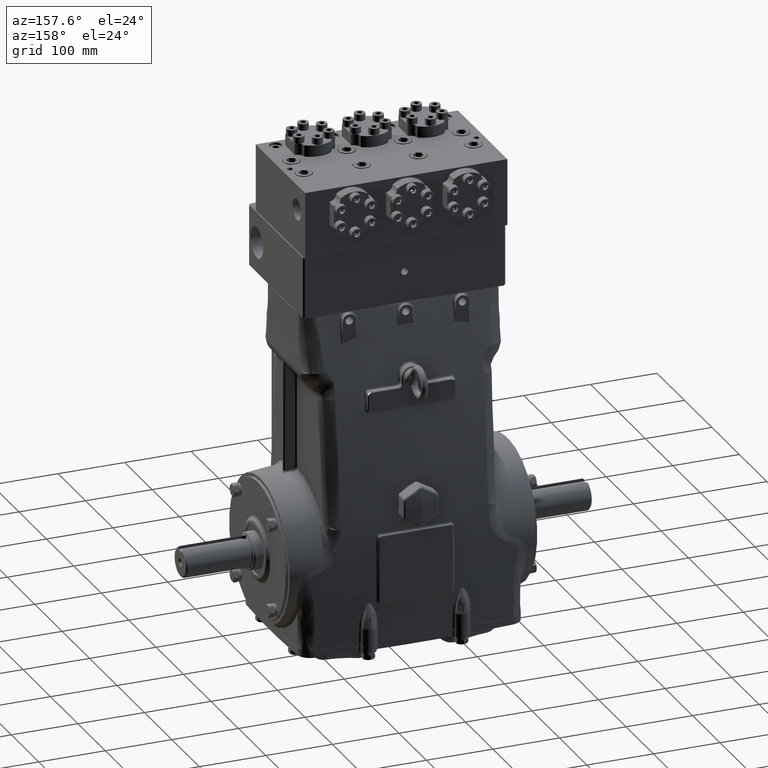
[diagram: clean part render]
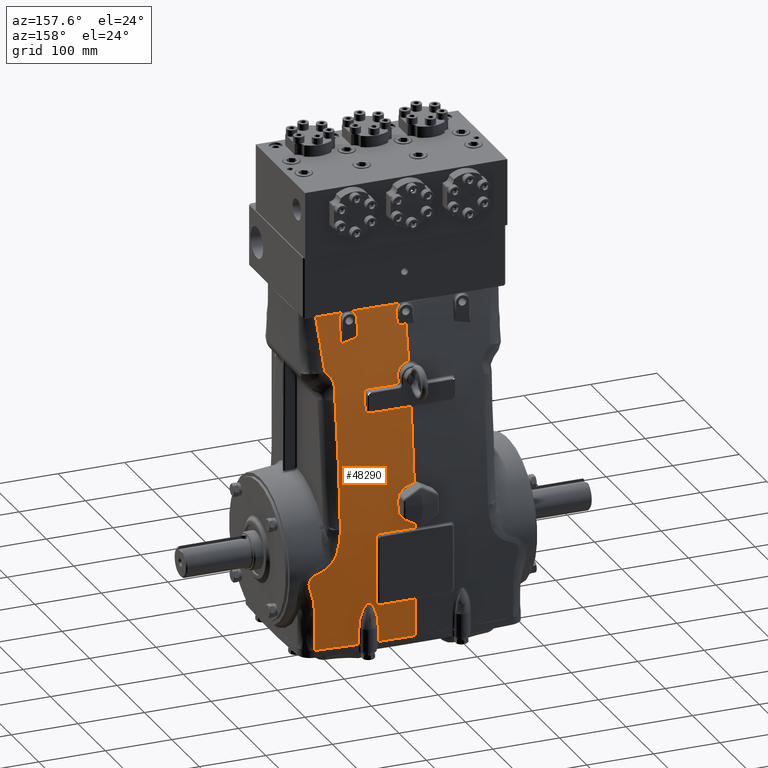
[diagram: same view with one face highlighted and labeled with its STEP entity id]
A machine part, auxiliary view. The second image highlights one B-rep face of the part: STEP entity #48290.
In plain terms, the highlighted face is a freeform B-spline surface patch.
Its self-contained STEP definition (entity closure, byte-faithful):
#68 = CARTESIAN_POINT ( 'NONE',  ( 3.651481510096193261, 2.947748408232186978, 14.71399020105834410 ) ) ;
#319 = CARTESIAN_POINT ( 'NONE',  ( 2.701531930759480726, 4.618568781956869707, -2.121116862531145397 ) ) ;
#361 = CARTESIAN_POINT ( 'NONE',  ( 3.328915999479604704, 4.528127923794316168, -4.527559055118110187 ) ) ;
#547 = CARTESIAN_POINT ( 'NONE',  ( 4.412361925476009934E-15, 3.637547179264236874, 11.49982354951539065 ) ) ;
#565 = CARTESIAN_POINT ( 'NONE',  ( 6.312383828303298572E-16, 4.461211006959257652, 4.558232116744143525 ) ) ;
#658 = CARTESIAN_POINT ( 'NONE',  ( 2.061785393838359681, 4.637630959513161955, -2.317006357018753349 ) ) ;
#679 = CARTESIAN_POINT ( 'NONE',  ( 4.402411114561855854, 3.598218508459029241, 10.89103831921278243 ) ) ;
#731 = CARTESIAN_POINT ( 'NONE',  ( 3.069712151993567950, 4.599369859830109597, -2.439387756291494291 ) ) ;
#1130 = ORIENTED_EDGE ( 'NONE', *, *, #79747, .T. ) ;
#1139 = CARTESIAN_POINT ( 'NONE',  ( 3.264259487485059452, 4.580004926770214979, -3.006536777921918979 ) ) ;
#1287 = CARTESIAN_POINT ( 'NONE',  ( 8.010771585360116021, 2.577267971990089723, 14.76377952755905376 ) ) ;
#1306 = CARTESIAN_POINT ( 'NONE',  ( 0.9953190679750538727, 4.508541480284075753, 3.768448535005342936 ) ) ;
#1321 = CARTESIAN_POINT ( 'NONE',  ( 0.6978794429912075215, 3.810167667684710935, 10.37513297753883457 ) ) ;
#1363 = B_SPLINE_CURVE_WITH_KNOTS ( 'NONE', 3,
 ( #6817, #20027, #26223, #69193 ),
 .UNSPECIFIED., .F., .F.,
 ( 4, 4 ),
 ( 0.8854608263995438211, 1.000000000000000000 ),
 .UNSPECIFIED. ) ;
#1542 = CARTESIAN_POINT ( 'NONE',  ( 2.742114411180209377, 4.617147685808664193, -2.108700484261165631 ) ) ;
#1681 = CARTESIAN_POINT ( 'NONE',  ( 0.8384883097548277986, 4.606402865748437492, 1.924387817931622946 ) ) ;
#1694 = CARTESIAN_POINT ( 'NONE',  ( 6.914792917325005561, 4.010243606915041781, 8.422581710757237161 ) ) ;
#1715 = CARTESIAN_POINT ( 'NONE',  ( 1.013370472233613651, 4.530716413467074766, 3.403131536585997541 ) ) ;
#1953 = CARTESIAN_POINT ( 'NONE',  ( 3.174764351864050038, 4.590621731993429044, -2.685643257448172783 ) ) ;
#1969 = B_SPLINE_CURVE_WITH_KNOTS ( 'NONE', 3,
 ( #48989, #4374, #30385, #17198, #55583, #74585, #23389, #42369, #67590, #18007, #19627, #57628, #76221, #7645, #26224, #57213, #13025, #38196, #25400, #32000, #58442, #77022 ),
 .UNSPECIFIED., .F., .F.,
 ( 4, 2, 2, 2, 2, 2, 2, 2, 2, 2, 4 ),
 ( 6.938893903907228378E-18, 0.001376093496515487903, 0.002752186993030968868, 0.003440233741288699701, 0.004128280489546430100, 0.005504373986061880490, 0.006880467482577330880, 0.008256560979092780403, 0.008944607727350506465, 0.009632654475608230793, 0.01100874797212365690 ),
 .UNSPECIFIED. ) ;
#2045 = EDGE_CURVE ( 'NONE', #78939, #74269, #58369, .T. ) ;
#2118 = CARTESIAN_POINT ( 'NONE',  ( 2.830016514658296067, 3.203526783194877048, 13.62457516692168547 ) ) ;
#2135 = CARTESIAN_POINT ( 'NONE',  ( 0.9871457767606230949, 4.506571334369311010, 3.801047729524442254 ) ) ;
#2185 = CARTESIAN_POINT ( 'NONE',  ( 2.437599890684105208, 3.779875850069637888, 10.32020428792747246 ) ) ;
#2366 = CARTESIAN_POINT ( 'NONE',  ( 2.977526601173986265, 2.988935215660109002, 14.66736078855516467 ) ) ;
#2417 = EDGE_CURVE ( 'NONE', #61497, #56957, #16002, .T. ) ;
#2536 = CARTESIAN_POINT ( 'NONE',  ( 0.8686687313043722769, 4.555593532798170919, 2.996754381377050080 ) ) ;
#2584 = CARTESIAN_POINT ( 'NONE',  ( 2.454531477738356671, 3.779293771828157400, 10.32020440284131269 ) ) ;
#2823 = CARTESIAN_POINT ( 'NONE',  ( 0.6520013994389496359, 3.709711566707584840, 11.03260850597895271 ) ) ;
#2933 = CARTESIAN_POINT ( 'NONE',  ( 0.6232220025633190552, 4.572327999367633566, 2.725436293468312954 ) ) ;
#3163 = CARTESIAN_POINT ( 'NONE',  ( 4.846040118466071078, 4.487327009371351316, 0.6196005891569402735 ) ) ;
#3174 = VERTEX_POINT ( 'NONE', #547 ) ;
#3194 = VERTEX_POINT ( 'NONE', #7974 ) ;
#3223 = CARTESIAN_POINT ( 'NONE',  ( 0.4553496510783597850, 3.664054061956033781, 11.32806419505682172 ) ) ;
#3422 = CARTESIAN_POINT ( 'NONE',  ( 5.900791666314807763E-15, 3.031496062992133034, 14.76377952755905376 ) ) ;
#3475 = ORIENTED_EDGE ( 'NONE', *, *, #20958, .F. ) ;
#3505 = CARTESIAN_POINT ( 'NONE',  ( 5.876068381442897781, 4.427703630584542971, -2.004294111039187420 ) ) ;
#3645 = CARTESIAN_POINT ( 'NONE',  ( 0.4021337125264585755, 3.657501159857034168, 11.37051122604269793 ) ) ;
#3840 = CARTESIAN_POINT ( 'NONE',  ( 0.2224577291634554366, 4.347787444496950648, 8.422581710757233608 ) ) ;
#4047 = CARTESIAN_POINT ( 'NONE',  ( 0.6369828527396146356, 3.703206641207970051, 11.07466824453680587 ) ) ;
#4245 = CARTESIAN_POINT ( 'NONE',  ( 0.9079692655167629356, 4.595276432738351957, -4.656973560824527958 ) ) ;
#4283 = CARTESIAN_POINT ( 'NONE',  ( 2.606987478791454205, 3.957406336938632752, 9.007465429665368006 ) ) ;
#4330 = B_SPLINE_CURVE_WITH_KNOTS ( 'NONE', 3,
 ( #10189, #47770, #9357, #78741, #66367, #46955, #65948, #72159, #41143, #66784, #15557, #27557, #60568, #22973, #79572, #22556, #48184, #9766 ),
 .UNSPECIFIED., .F., .F.,
 ( 4, 2, 2, 2, 2, 2, 2, 2, 4 ),
 ( 0.000000000000000000, 0.001829453460223797422, 0.003658906920447594843, 0.005488360380671392265, 0.006403087110783295746, 0.007317813840895199227, 0.009147267301119010527, 0.01097672076134282443, 0.01463562768179032386 ),
 .UNSPECIFIED. ) ;
#4374 = CARTESIAN_POINT ( 'NONE',  ( 2.318976528077462795, 4.583359062394156247, 1.667370969184091445 ) ) ;
#4522 = CARTESIAN_POINT ( 'NONE',  ( 2.298771278710823651, 4.632541934470554956, -2.141879390659203519 ) ) ;
#4647 = ORIENTED_EDGE ( 'NONE', *, *, #52867, .T. ) ;
#4657 = CARTESIAN_POINT ( 'NONE',  ( 2.248083206313613580, 4.841618646203139420, 1.943166230203470901 ) ) ;
#4689 = B_SPLINE_CURVE_WITH_KNOTS ( 'NONE', 3,
 ( #63062, #17645, #49042, #42422, #30439, #49856, #74636, #81243 ),
 .UNSPECIFIED., .F., .F.,
 ( 4, 2, 2, 4 ),
 ( 0.000000000000000000, 0.2499999999999999722, 0.5000000000000000000, 1.000000000000000000 ),
 .UNSPECIFIED. ) ;
#4837 = B_SPLINE_CURVE_WITH_KNOTS ( 'NONE', 3,
 ( #78544, #71550, #27364, #77733 ),
 .UNSPECIFIED., .F., .F.,
 ( 4, 4 ),
 ( 0.000000000000000000, 1.000000000000000000 ),
 .UNSPECIFIED. ) ;
#4954 = CARTESIAN_POINT ( 'NONE',  ( 4.749490998177087213E-15, 3.523617663083891127, 12.19471548219141610 ) ) ;
#5059 = CARTESIAN_POINT ( 'NONE',  ( 3.799482490512350541, 2.977109451432188969, 14.53335016819296044 ) ) ;
#5062 = CARTESIAN_POINT ( 'NONE',  ( 5.009021827684231098, 4.421851645745991100, -4.721680813677749278 ) ) ;
#5096 = CARTESIAN_POINT ( 'NONE',  ( 2.641224966728149770, 3.951303560078479826, 9.044238144370725152 ) ) ;
#5300 = CARTESIAN_POINT ( 'NONE',  ( 2.188588558702841080, 4.586289201850664909, -4.198406915061149824 ) ) ;
#5309 = CARTESIAN_POINT ( 'NONE',  ( 2.208388814810651635, 4.614470275944395183, -3.271966291778334313 ) ) ;
#5454 = CARTESIAN_POINT ( 'NONE',  ( 1.690762837725492185, 4.581300099874107801, -4.656973560824556380 ) ) ;
#5456 = CARTESIAN_POINT ( 'NONE',  ( 3.851954494805433615, 3.267716535433037084, 13.02311742914287862 ) ) ;
#5485 = CARTESIAN_POINT ( 'NONE',  ( 2.659647026347728982, 3.946957338515350244, 9.071963951929443937 ) ) ;
#5856 = CARTESIAN_POINT ( 'NONE',  ( 2.322066232192743218, 2.994012572622927859, 14.76377952755907152 ) ) ;
#6036 = CARTESIAN_POINT ( 'NONE',  ( 2.187826872828198432, 4.634392505793423211, -2.276733834654202315 ) ) ;
#6065 = CARTESIAN_POINT ( 'NONE',  ( 4.644531702113123828, 3.508652112901058828, 11.35625030479742215 ) ) ;
#6177 = VERTEX_POINT ( 'NONE', #25338 ) ;
#6187 = CARTESIAN_POINT ( 'NONE',  ( 4.877003644330629939, 3.452992667884452693, 11.60066926512785024 ) ) ;
#6260 = EDGE_CURVE ( 'NONE', #25915, #37878, #62807, .T. ) ;
#6278 = CARTESIAN_POINT ( 'NONE',  ( 3.839152251050477638, 2.997340525112076381, 14.42354685091496869 ) ) ;
#6279 = CARTESIAN_POINT ( 'NONE',  ( 7.840972216516076010, 4.165980813335560029, -4.656973560824543945 ) ) ;
#6445 = CARTESIAN_POINT ( 'NONE',  ( 2.151741479286120917, 3.005387430108183100, 14.76377952755905376 ) ) ;
#6463 = ORIENTED_EDGE ( 'NONE', *, *, #14877, .T. ) ;
#6473 = CARTESIAN_POINT ( 'NONE',  ( 4.387640344643953583, 3.708186445716682211, 10.16947670122253911 ) ) ;
#6510 = CARTESIAN_POINT ( 'NONE',  ( 2.184673463171597607, 4.572659355340269904, -4.527559055118110187 ) ) ;
#6633 = CARTESIAN_POINT ( 'NONE',  ( 5.879417847965250132, 4.362021250421312502, -4.527559055118116405 ) ) ;
#6670 = CARTESIAN_POINT ( 'NONE',  ( 6.044960681896374588, 2.773772774256740181, 14.76377952755904666 ) ) ;
#6707 = CARTESIAN_POINT ( 'NONE',  ( 0.7008725820796545269, 3.810978214036579548, 10.36949871931908618 ) ) ;
#6811 = CARTESIAN_POINT ( 'NONE',  ( 0.5109753291395739971, 3.267716535433064173, 13.57069110194528427 ) ) ;
#6817 = CARTESIAN_POINT ( 'NONE',  ( -3.884013094698831852E-15, 4.667777691223701453, -2.303983202260411201 ) ) ;
#6887 = CARTESIAN_POINT ( 'NONE',  ( 4.382736823121505587, 3.619458177033666235, 10.76185860776159409 ) ) ;
#6894 = CARTESIAN_POINT ( 'NONE',  ( 0.5109753291395739971, 3.267716535433064173, 13.57069110194528427 ) ) ;
#6933 = CARTESIAN_POINT ( 'NONE',  ( 2.447008403094361295, 4.623625294222242665, -2.440237292953108206 ) ) ;
#6969 = CARTESIAN_POINT ( 'NONE',  ( 0.6880322387051941435, 3.743901230683653214, 10.81170814730339735 ) ) ;
#6990 = CARTESIAN_POINT ( 'NONE',  ( 4.575664673355891665, 4.490410469785765635, 1.165465972148642226 ) ) ;
#7088 = CARTESIAN_POINT ( 'NONE',  ( 6.982787974799744113, 4.253929032151550160, -4.721680813677723521 ) ) ;
#7264 = ORIENTED_EDGE ( 'NONE', *, *, #64381, .T. ) ;
#7296 = CARTESIAN_POINT ( 'NONE',  ( 4.373654649023359653, 3.676098798277282587, 10.39228368353698251 ) ) ;
#7303 = CARTESIAN_POINT ( 'NONE',  ( 0.1703745722025083731, 3.267716535433072167, 13.58029005189720451 ) ) ;
#7339 = CARTESIAN_POINT ( 'NONE',  ( 2.830024961199784972, 3.058817400774911821, 14.35473765777197741 ) ) ;
#7502 = CARTESIAN_POINT ( 'NONE',  ( 7.416497299279933841, 2.643173671587415896, 14.76377952755897915 ) ) ;
#7645 = CARTESIAN_POINT ( 'NONE',  ( 2.181590383569838476, 4.579253753584294095, 1.888096304704787176 ) ) ;
#7752 = CARTESIAN_POINT ( 'NONE',  ( 2.830024405063901849, 3.068350527378704395, 14.30740610616954633 ) ) ;
#7757 = CARTESIAN_POINT ( 'NONE',  ( 2.915083705053045371, 4.609178548293891176, -2.200237632199486981 ) ) ;
#7924 = CARTESIAN_POINT ( 'NONE',  ( 0.8132791124269836969, 4.560704842127422332, 2.913683350466111488 ) ) ;
#7974 = CARTESIAN_POINT ( 'NONE',  ( 6.177060094176860083, 4.403194223577178157, -0.6693918952786670484 ) ) ;
#8030 = CARTESIAN_POINT ( 'NONE',  ( 5.139723834965892912, 2.844914974725960555, 14.76377952755909106 ) ) ;
#8157 = CARTESIAN_POINT ( 'NONE',  ( 2.947716724674771971, 4.607352005450888299, -2.238934705606983488 ) ) ;
#8222 = CARTESIAN_POINT ( 'NONE',  ( 2.830024405063901849, 3.068350527378704395, 14.30740610616954633 ) ) ;
#8334 = CARTESIAN_POINT ( 'NONE',  ( 0.9701154047045792428, 4.542634649372197408, 3.207953012442695151 ) ) ;
#8399 = ORIENTED_EDGE ( 'NONE', *, *, #57073, .F. ) ;
#8515 = CARTESIAN_POINT ( 'NONE',  ( 3.196427436627607622E-15, 4.347787444496948872, 8.422581710757230056 ) ) ;
#8650 = CARTESIAN_POINT ( 'NONE',  ( 3.115436207729486231E-15, 4.013642697210881849, 8.943963267100814463 ) ) ;
#8749 = CARTESIAN_POINT ( 'NONE',  ( 0.5816496384095978245, 4.472015295811106128, 4.376689511115172238 ) ) ;
#8802 = CARTESIAN_POINT ( 'NONE',  ( 2.606925956908707764, 3.783241629635171410, 10.25677432402422795 ) ) ;
#8956 = CARTESIAN_POINT ( 'NONE',  ( 5.030059304290442235, 4.432754126991040877, -4.527559055118112852 ) ) ;
#9357 = CARTESIAN_POINT ( 'NONE',  ( 0.5093356877205131861, 3.113489254636431447, 14.35454857652500316 ) ) ;
#9382 = CARTESIAN_POINT ( 'NONE',  ( 4.684535308963552858, 4.491908325569497151, 0.8697371400636882965 ) ) ;
#9411 = CARTESIAN_POINT ( 'NONE',  ( 0.6880314196529212500, 3.803783787355888180, 10.41849884483931277 ) ) ;
#9442 = CARTESIAN_POINT ( 'NONE',  ( 0.6836314867914201621, 3.729995947927178701, 10.90150953801785327 ) ) ;
#9593 = CARTESIAN_POINT ( 'NONE',  ( 1.887339897402498190, 3.798792822720863160, 10.32020055334025699 ) ) ;
#9661 = EDGE_CURVE ( 'NONE', #37878, #57352, #58394, .T. ) ;
#9766 = CARTESIAN_POINT ( 'NONE',  ( 0.2299129575897102817, 3.031124411287854592, 14.76377952755905199 ) ) ;
#9771 = EDGE_CURVE ( 'NONE', #23820, #56957, #35703, .T. ) ;
#9789 = CARTESIAN_POINT ( 'NONE',  ( 4.943153572214380453, 4.483134460830481061, 0.5084975985147074384 ) ) ;
#9979 = EDGE_CURVE ( 'NONE', #59559, #73744, #76180, .T. ) ;
#10051 = CARTESIAN_POINT ( 'NONE',  ( -5.602677875328910176E-15, 4.600890810441183199, -4.656973560824543945 ) ) ;
#10189 = CARTESIAN_POINT ( 'NONE',  ( 0.5109772199348537880, 3.122987355117716746, 14.30738865030443208 ) ) ;
#10539 = CARTESIAN_POINT ( 'NONE',  ( 6.099101924198930824, 4.411952848159092611, -0.9364745164400701816 ) ) ;
#10744 = CARTESIAN_POINT ( 'NONE',  ( 2.280208723277667993, 4.632671343190100544, -2.182157133894933931 ) ) ;
#10793 = CARTESIAN_POINT ( 'NONE',  ( 0.06757675111883387764, 4.461211006959258540, 4.558232116744147078 ) ) ;
#10876 = CARTESIAN_POINT ( 'NONE',  ( 3.584732922522847698, 4.258628334929504433, 8.422581710757182094 ) ) ;
#11275 = CARTESIAN_POINT ( 'NONE',  ( 3.851974450224074253, 3.020120361709393908, 14.30742108987229955 ) ) ;
#11279 = CARTESIAN_POINT ( 'NONE',  ( 0.9086231401177150557, 4.600676163079257641, -4.527559055118095976 ) ) ;
#11322 = CARTESIAN_POINT ( 'NONE',  ( 4.941627852679784993, 3.282857233909547645, 12.56932634269046822 ) ) ;
#11363 = CARTESIAN_POINT ( 'NONE',  ( 6.177060094176860083, 4.403194223577178157, -0.6693918952786670484 ) ) ;
#11394 = CARTESIAN_POINT ( 'NONE',  ( 0.7288146890678441903, 4.606298740546600712, -4.527559055118112852 ) ) ;
#11492 = CARTESIAN_POINT ( 'NONE',  ( 2.043841373461740663, 4.638150169508552523, -2.316861217153053154 ) ) ;
#11673 = CARTESIAN_POINT ( 'NONE',  ( 3.764486084283202416, 2.966485147355278684, 14.59434989105765013 ) ) ;
#11679 = CARTESIAN_POINT ( 'NONE',  ( 1.292883604319777557, 4.586834731234040952, -4.721680813677763489 ) ) ;
#11709 = CARTESIAN_POINT ( 'NONE',  ( 2.684660732739246658, 3.937831475490145561, 9.133712504982257840 ) ) ;
#11720 = B_SPLINE_CURVE_WITH_KNOTS ( 'NONE', 3,
 ( #37541, #38350, #30938, #44964, #31752, #63972, #6969 ),
 .UNSPECIFIED., .F., .F.,
 ( 4, 3, 4 ),
 ( 0.000000000000000000, 0.005000003906175092688, 0.01010267984815394447 ),
 .UNSPECIFIED. ) ;
#12074 = CARTESIAN_POINT ( 'NONE',  ( 3.826551994666004042, 2.988924126845868834, 14.46830646171594381 ) ) ;
#12078 = CARTESIAN_POINT ( 'NONE',  ( 0.9413168701653233938, 4.870662680124564048, 1.943166230203456690 ) ) ;
#12291 = EDGE_CURVE ( 'NONE', #74269, #26311, #74842, .T. ) ;
#12471 = EDGE_CURVE ( 'NONE', #73744, #49209, #1969, .T. ) ;
#12478 = CARTESIAN_POINT ( 'NONE',  ( 3.597778020125610876, 2.941607145639235643, 14.76377952755897205 ) ) ;
#12563 = CARTESIAN_POINT ( 'NONE',  ( 1.362700040930511003, 4.655412099904667755, -2.310692193245352577 ) ) ;
#12605 = CARTESIAN_POINT ( 'NONE',  ( -7.600749172372925012E-16, 4.594819430859123699, 2.317503751890035879 ) ) ;
#13025 = CARTESIAN_POINT ( 'NONE',  ( 2.132221740923327946, 4.579881292546461147, 1.909962969968992841 ) ) ;
#13069 = CARTESIAN_POINT ( 'NONE',  ( 2.210162846589219576, 4.633895373099217174, -2.261891458782286701 ) ) ;
#13088 = CARTESIAN_POINT ( 'NONE',  ( 4.488290454067054291, 3.553345046485214986, 11.14156287700532033 ) ) ;
#13135 = CARTESIAN_POINT ( 'NONE',  ( 2.775995043596985123, 4.615829159749473831, -2.108609794028626805 ) ) ;
#13283 = CARTESIAN_POINT ( 'NONE',  ( 8.010771585360116021, 4.143958518360532750, -4.721680813677759936 ) ) ;
#13446 = CARTESIAN_POINT ( 'NONE',  ( 5.154280058170931156, 2.843870361323792562, 14.76377952755909995 ) ) ;
#13540 = CARTESIAN_POINT ( 'NONE',  ( 3.012039423800465077, 2.980909564726708094, 14.69916149659901983 ) ) ;
#13545 = CARTESIAN_POINT ( 'NONE',  ( 2.792807057139011562, 4.615130221427724777, -2.112057970775766513 ) ) ;
#13570 = CARTESIAN_POINT ( 'NONE',  ( -3.884013094698831852E-15, 4.667777691223701453, -2.303983202260411201 ) ) ;
#13690 = CARTESIAN_POINT ( 'NONE',  ( 6.594692216219495862, 4.296326921164976831, -4.592266307971319961 ) ) ;
#13897 = CARTESIAN_POINT ( 'NONE',  ( 4.554536418742149984, 3.529893254434369965, 11.26165539804758531 ) ) ;
#13941 = CARTESIAN_POINT ( 'NONE',  ( 2.967372770717279451, 4.606181499369172094, -2.266103691499020023 ) ) ;
#13973 = CARTESIAN_POINT ( 'NONE',  ( 0.8384883097548277986, 4.606402865748437492, 1.924387817931622946 ) ) ;
#14117 = CARTESIAN_POINT ( 'NONE',  ( 0.9172184988185608789, 4.495296620105803775, 3.988050396689373223 ) ) ;
#14174 = CARTESIAN_POINT ( 'NONE',  ( 2.686638859893773823, 3.799953323233129954, 10.12256305380665999 ) ) ;
#14203 = B_SPLINE_CURVE_WITH_KNOTS ( 'NONE', 3,
 ( #56330, #42301, #36521, #61320 ),
 .UNSPECIFIED., .F., .F.,
 ( 4, 4 ),
 ( 0.000000000000000000, 1.000000000000000000 ),
 .UNSPECIFIED. ) ;
#14305 = CARTESIAN_POINT ( 'NONE',  ( 0.5118390017857407104, 4.602294559333656387, -4.592266307971315520 ) ) ;
#14393 = ORIENTED_EDGE ( 'NONE', *, *, #65901, .T. ) ;
#14475 = EDGE_CURVE ( 'NONE', #62914, #78939, #66055, .T. ) ;
#14505 = CARTESIAN_POINT ( 'NONE',  ( 6.981783121733614372, 4.262140853214442693, -4.527559055118076436 ) ) ;
#14523 = CARTESIAN_POINT ( 'NONE',  ( 0.1679480221854707522, 4.584608840203244107, 2.527398566096981103 ) ) ;
#14668 = CARTESIAN_POINT ( 'NONE',  ( 2.437599890684105208, 3.779875850069637888, 10.32020428792747246 ) ) ;
#14761 = CARTESIAN_POINT ( 'NONE',  ( 2.693821670345954544, 4.618819190766955352, -2.124964419880735811 ) ) ;
#14847 = ORIENTED_EDGE ( 'NONE', *, *, #36736, .T. ) ;
#14877 = EDGE_CURVE ( 'NONE', #23820, #6177, #41298, .T. ) ;
#14931 = CARTESIAN_POINT ( 'NONE',  ( 0.8123840481595756557, 4.484978847732183027, 4.159840829477225554 ) ) ;
#15075 = CARTESIAN_POINT ( 'NONE',  ( 1.514744074498289684E-15, 4.352998590032099102, 6.023826251292744516 ) ) ;
#15161 = CARTESIAN_POINT ( 'NONE',  ( 3.030367537241233755, 2.977087704905944321, 14.71386227304292760 ) ) ;
#15343 = CARTESIAN_POINT ( 'NONE',  ( 1.020340880334985600, 4.526637392480620470, 3.470101522384079651 ) ) ;
#15358 = CARTESIAN_POINT ( 'NONE',  ( 0.6880314196529212500, 3.803783787355888180, 10.41849884483931277 ) ) ;
#15557 = CARTESIAN_POINT ( 'NONE',  ( 0.4416785562279126331, 3.071195576896271540, 14.56462893778061662 ) ) ;
#15639 = CARTESIAN_POINT ( 'NONE',  ( 0.1127210174199038961, 3.638923843544319414, 11.49089987532720158 ) ) ;
#16002 = B_SPLINE_CURVE_WITH_KNOTS ( 'NONE', 3,
 ( #11275, #44261, #24056, #31474, #6278, #12074, #31056, #24469, #5059, #49669, #42639, #11673, #37249, #48855, #74452, #17865, #68, #75256, #25265, #75669 ),
 .UNSPECIFIED., .F., .F.,
 ( 4, 2, 2, 2, 2, 2, 2, 2, 2, 4 ),
 ( 0.000000000000000000, 0.001822815869792782052, 0.003645631739585564104, 0.005468447609378345939, 0.006379855544274817304, 0.007291263479171287802, 0.009114079348964378852, 0.01093689521875746903, 0.01275971108855056269, 0.01458252695834365113 ),
 .UNSPECIFIED. ) ;
#16044 = CARTESIAN_POINT ( 'NONE',  ( 0.2437722145974806076, 3.644372411226895814, 11.45558367136099953 ) ) ;
#16460 = CARTESIAN_POINT ( 'NONE',  ( 0.09044312785819097478, 3.638410699276727112, 11.49422615141540405 ) ) ;
#16658 = ORIENTED_EDGE ( 'NONE', *, *, #46032, .F. ) ;
#16660 = CARTESIAN_POINT ( 'NONE',  ( 0.5116053698341428424, 4.599591841666884839, -4.656973560824531511 ) ) ;
#16769 = B_SPLINE_CURVE_WITH_KNOTS ( 'NONE', 3,
 ( #36168, #11394, #66347, #30368 ),
 .UNSPECIFIED., .F., .F.,
 ( 4, 4 ),
 ( 0.000000000000000000, 0.3323746915759632214 ),
 .UNSPECIFIED. ) ;
#16793 = EDGE_CURVE ( 'NONE', #37502, #39102, #11720, .T. ) ;
#17073 = CARTESIAN_POINT ( 'NONE',  ( 2.211091693374047207, 4.572389946396967275, -4.527559055118099529 ) ) ;
#17108 = CARTESIAN_POINT ( 'NONE',  ( 2.677001054946664738, 3.941300001281720089, 9.109765359736105239 ) ) ;
#17130 = CARTESIAN_POINT ( 'NONE',  ( 6.312383828303298572E-16, 4.461211006959257652, 4.558232116744143525 ) ) ;
#17143 = B_SPLINE_CURVE_WITH_KNOTS ( 'NONE', 3,
 ( #41804, #49636, #36417, #81028 ),
 .UNSPECIFIED., .F., .F.,
 ( 4, 4 ),
 ( 0.000000000000000000, 0.01906990034877494022 ),
 .UNSPECIFIED. ) ;
#17198 = CARTESIAN_POINT ( 'NONE',  ( 2.310102156582480415, 4.581653999931062593, 1.720866624146594193 ) ) ;
#17419 = ORIENTED_EDGE ( 'NONE', *, *, #53170, .F. ) ;
#17468 = CARTESIAN_POINT ( 'NONE',  ( 2.285074719253179065, 4.311495362183658919, 8.422581710757247819 ) ) ;
#17570 = CARTESIAN_POINT ( 'NONE',  ( 5.876248016176861100, 4.424191160897476216, -2.271302909439997908 ) ) ;
#17586 = CARTESIAN_POINT ( 'NONE',  ( 1.166750935531556276E-15, 4.606299212598425008, -4.527559055118112852 ) ) ;
#17645 = CARTESIAN_POINT ( 'NONE',  ( 6.196861724675757799, 4.400969504258547715, -0.6015520362814922306 ) ) ;
#17663 = CARTESIAN_POINT ( 'NONE',  ( 0.6880322387051941435, 3.743901230683653214, 10.81170814730339735 ) ) ;
#17865 = CARTESIAN_POINT ( 'NONE',  ( 3.669865292029352410, 2.949841860476158484, 14.69926958824076912 ) ) ;
#17868 = CARTESIAN_POINT ( 'NONE',  ( 5.656770982350706412, 4.378579615097414113, -4.592266307971336836 ) ) ;
#18007 = CARTESIAN_POINT ( 'NONE',  ( 2.262422301246216350, 4.579503084077518160, 1.817312627143075954 ) ) ;
#18014 = B_SPLINE_CURVE_WITH_KNOTS ( 'NONE', 3,
 ( #62962, #35828, #25351, #12563, #50968, #63366 ),
 .UNSPECIFIED., .F., .F.,
 ( 4, 2, 4 ),
 ( 2.256537282355734969E-20, 0.02596087739338915831, 0.05192175478677831663 ),
 .UNSPECIFIED. ) ;
#18279 = CARTESIAN_POINT ( 'NONE',  ( 1.006704330260536517, 3.024572241022618790, 14.76377952755902001 ) ) ;
#18454 = CARTESIAN_POINT ( 'NONE',  ( 2.164399420150777242, 4.634940489482248793, -2.289647765816026581 ) ) ;
#18670 = CARTESIAN_POINT ( 'NONE',  ( 0.9740106002129303997, 4.341297213344217809, 8.422581710757215845 ) ) ;
#18844 = CARTESIAN_POINT ( 'NONE',  ( 2.314941133609087043, 4.636985051936846958, -1.545581057403319525 ) ) ;
#18880 = CARTESIAN_POINT ( 'NONE',  ( 5.383268561108582947E-15, 3.267716535631394414, 13.58029005086232388 ) ) ;
#18989 = CARTESIAN_POINT ( 'NONE',  ( 4.644531702113123828, 3.508652112901058828, 11.35625030479742215 ) ) ;
#19081 = CARTESIAN_POINT ( 'NONE',  ( 6.594329900471021411, 4.299064723046243763, -4.527559055118104858 ) ) ;
#19202 = EDGE_CURVE ( 'NONE', #28744, #76721, #46798, .T. ) ;
#19256 = CARTESIAN_POINT ( 'NONE',  ( 2.316218024519393293, 4.631858932537675777, -0.2944304550576696822 ) ) ;
#19341 = CARTESIAN_POINT ( 'NONE',  ( 2.550600924672969061, 4.622388258724688725, -2.267580268459193693 ) ) ;
#19497 = CARTESIAN_POINT ( 'NONE',  ( 6.154177000633977990, 4.339135125720685160, -4.527559055118121734 ) ) ;
#19627 = CARTESIAN_POINT ( 'NONE',  ( 2.251032666529330761, 4.579326449597346915, 1.831156177600878010 ) ) ;
#19663 = CARTESIAN_POINT ( 'NONE',  ( 2.318974855294463122, 4.613388442518813193, 0.7063367758688863240 ) ) ;
#19862 = ORIENTED_EDGE ( 'NONE', *, *, #49037, .F. ) ;
#19891 = CARTESIAN_POINT ( 'NONE',  ( 8.010771585360116021, 4.152071121596395464, -4.527559055118112852 ) ) ;
#20027 = CARTESIAN_POINT ( 'NONE',  ( -4.411887695559600975E-15, 4.657759727594342536, -3.045141992962508759 ) ) ;
#20103 = CARTESIAN_POINT ( 'NONE',  ( 0.3407211084225431619, 3.267716535433070391, 13.57709580740508670 ) ) ;
#20137 = B_SPLINE_CURVE_WITH_KNOTS ( 'NONE', 3,
 ( #51818, #12605, #32810, #50197 ),
 .UNSPECIFIED., .F., .F.,
 ( 4, 4 ),
 ( 0.6370730338580411489, 0.6675097273409116294 ),
 .UNSPECIFIED. ) ;
#20145 = CARTESIAN_POINT ( 'NONE',  ( 3.308564916187982874, 4.571639314069767757, -3.271619612228033436 ) ) ;
#20317 = CARTESIAN_POINT ( 'NONE',  ( 0.6747861333217565205, 4.569706033937251277, 2.767837753892298025 ) ) ;
#20331 = CARTESIAN_POINT ( 'NONE',  ( 0.7367806402474045280, 3.815993895627271204, 10.33335069343910639 ) ) ;
#20370 = CARTESIAN_POINT ( 'NONE',  ( 2.593789055682967692, 3.782124229774820545, 10.26760569822780056 ) ) ;
#20378 = CARTESIAN_POINT ( 'NONE',  ( 5.741427851182373310, 4.432030900606833690, 0.01543097611850809646 ) ) ;
#20498 = CARTESIAN_POINT ( 'NONE',  ( 0.2116093314590320185, 4.876719320460515483, 1.943166230203456024 ) ) ;
#20551 = CARTESIAN_POINT ( 'NONE',  ( 2.866718800528062161, 4.611717548935104993, -2.152756118298663868 ) ) ;
#20703 = CARTESIAN_POINT ( 'NONE',  ( 8.010771585360116021, 4.149366920517774560, -4.592266307971328843 ) ) ;
#20722 = CARTESIAN_POINT ( 'NONE',  ( 0.7701101099605476286, 4.481896339802110774, 4.211308796408767208 ) ) ;
#20778 = CARTESIAN_POINT ( 'NONE',  ( 2.659628800947626548, 3.790775049101041905, 10.19227963712540053 ) ) ;
#20958 = EDGE_CURVE ( 'NONE', #76721, #33175, #24795, .T. ) ;
#20967 = CARTESIAN_POINT ( 'NONE',  ( 2.581147110461997851, 4.621803821078445118, -2.226814092063356565 ) ) ;
#21132 = CARTESIAN_POINT ( 'NONE',  ( 0.4534951601555402556, 4.467376667078956309, 4.454529658732406361 ) ) ;
#21244 = CARTESIAN_POINT ( 'NONE',  ( 2.573277672827526175, 3.961868625270946520, 8.982810638992878793 ) ) ;
#21537 = CARTESIAN_POINT ( 'NONE',  ( 0.3606380387442181812, 4.465084379643096568, 4.493058333690127526 ) ) ;
#21574 = CARTESIAN_POINT ( 'NONE',  ( 3.851974450224074253, 3.020120361709393908, 14.30742108987229955 ) ) ;
#21649 = CARTESIAN_POINT ( 'NONE',  ( 2.543698377344231432, 3.965018425972150151, 8.966893995268707229 ) ) ;
#21827 = CARTESIAN_POINT ( 'NONE',  ( 0.5853322580657513985, 3.687838716886381540, 11.17408547173088174 ) ) ;
#21940 = CARTESIAN_POINT ( 'NONE',  ( 1.021880873457693406, 4.518537242312949509, 3.603366046515161791 ) ) ;
#22230 = CARTESIAN_POINT ( 'NONE',  ( 0.1788028384947830951, 3.641134704841901382, 11.47656908745016047 ) ) ;
#22306 = ORIENTED_EDGE ( 'NONE', *, *, #66479, .T. ) ;
#22309 = ORIENTED_EDGE ( 'NONE', *, *, #14475, .F. ) ;
#22556 = CARTESIAN_POINT ( 'NONE',  ( 0.3113632170362304330, 3.040868640281711777, 14.71534273230742151 ) ) ;
#22578 = CARTESIAN_POINT ( 'NONE',  ( 5.494333309117938491, 4.450320407059822791, 0.1058793227132519138 ) ) ;
#22829 = CARTESIAN_POINT ( 'NONE',  ( 0.5587990240569146172, 4.346188826529005844, 8.422581710757233608 ) ) ;
#22973 = CARTESIAN_POINT ( 'NONE',  ( 0.3799131179753714727, 3.054025739953648788, 14.64994978841004247 ) ) ;
#23056 = CARTESIAN_POINT ( 'NONE',  ( 4.412361925476009934E-15, 3.637547179264236874, 11.49982354951539065 ) ) ;
#23253 = CARTESIAN_POINT ( 'NONE',  ( 4.987596574543398553, 4.701863335387849396, 1.943166230203484002 ) ) ;
#23378 = CARTESIAN_POINT ( 'NONE',  ( 2.318975252000595511, 4.606408219286449501, 0.9564773402658823809 ) ) ;
#23389 = CARTESIAN_POINT ( 'NONE',  ( 2.290685058935170826, 4.580376629985096315, 1.771086449292895271 ) ) ;
#23662 = CARTESIAN_POINT ( 'NONE',  ( 0.9082962028172389957, 4.597976297908804355, -4.592266307971311967 ) ) ;
#23820 = VERTEX_POINT ( 'NONE', #29693 ) ;
#23983 = CARTESIAN_POINT ( 'NONE',  ( 0.2644612158420538428, 4.463245679810873057, 4.523984465546639022 ) ) ;
#24056 = CARTESIAN_POINT ( 'NONE',  ( 3.850346852514803686, 3.010730659608137127, 14.35442420978179356 ) ) ;
#24059 = CARTESIAN_POINT ( 'NONE',  ( 1.731534567433884231, 4.856118541147578682, 1.943166230203452916 ) ) ;
#24305 = CARTESIAN_POINT ( 'NONE',  ( 2.195817312459180215, 4.607376599341251655, -3.539859056058924480 ) ) ;
#24469 = CARTESIAN_POINT ( 'NONE',  ( 3.804596537589640004, 2.979019892054041385, 14.52265893325974666 ) ) ;
#24472 = CARTESIAN_POINT ( 'NONE',  ( 2.886485659105091806, 2.973809581939732993, 14.76377952755902356 ) ) ;
#24517 = CARTESIAN_POINT ( 'NONE',  ( 4.878703439440998935, 3.433485552432554488, 11.71757076704091283 ) ) ;
#24795 = B_SPLINE_CURVE_WITH_KNOTS ( 'NONE', 3,
 ( #6990, #56571, #55756, #69786 ),
 .UNSPECIFIED., .F., .F.,
 ( 4, 4 ),
 ( 0.000000000000000000, 1.000000000000000000 ),
 .UNSPECIFIED. ) ;
#24867 = CARTESIAN_POINT ( 'NONE',  ( 2.798787471836534646, 4.546828485534713415, -4.656973560824550162 ) ) ;
#25033 = CARTESIAN_POINT ( 'NONE',  ( 2.318372199471267603, 4.619195877087080682, 0.4561661220340691436 ) ) ;
#25090 = CARTESIAN_POINT ( 'NONE',  ( 4.644531702113123828, 3.508652112901058828, 11.35625030479742215 ) ) ;
#25156 = VERTEX_POINT ( 'NONE', #71876 ) ;
#25259 = B_SPLINE_CURVE_WITH_KNOTS ( 'NONE', 3,
 ( #63487, #25469, #6473, #7296, #81666, #6887, #679, #13088, #13897, #6065 ),
 .UNSPECIFIED., .F., .F.,
 ( 4, 2, 2, 2, 4 ),
 ( 0.000000000000000000, 0.2500000000000000000, 0.5000000000000000000, 0.7500000000000000000, 1.000000000000000000 ),
 .UNSPECIFIED. ) ;
#25265 = CARTESIAN_POINT ( 'NONE',  ( 3.592320655747526015, 2.942690280307751483, 14.75301996616986600 ) ) ;
#25338 = CARTESIAN_POINT ( 'NONE',  ( 5.183405415249797699, 2.841738081440412511, 14.76377952755909462 ) ) ;
#25351 = CARTESIAN_POINT ( 'NONE',  ( 0.6813894055495408608, 4.665299388196084251, -2.305604122994855842 ) ) ;
#25388 = EDGE_LOOP ( 'NONE', ( #54313, #65442, #71914, #39152, #6463, #48403, #17419, #75791, #66039, #3475, #74345, #65790, #8399, #75007, #57452, #44416, #22309, #51332, #19862, #37004, #14393, #31308, #14847, #57632, #78460, #60418, #22306, #16658, #54738, #43695, #1130, #45915, #52520, #38862, #57843, #70111, #33972, #53610, #63174, #42628, #63213, #53892, #36734, #7264, #4647 ) ) ;
#25400 = CARTESIAN_POINT ( 'NONE',  ( 2.106230002371010990, 4.580361049320591071, 1.917371814141787256 ) ) ;
#25469 = CARTESIAN_POINT ( 'NONE',  ( 4.395888230724407819, 3.722636158688833685, 10.06672708834648766 ) ) ;
#25530 = EDGE_CURVE ( 'NONE', #48133, #32550, #28973, .T. ) ;
#25614 = EDGE_CURVE ( 'NONE', #26311, #77669, #14203, .T. ) ;
#25677 = CARTESIAN_POINT ( 'NONE',  ( 6.595054531967971201, 4.293589119283709898, -4.656973560824535951 ) ) ;
#25716 = CARTESIAN_POINT ( 'NONE',  ( 0.6911264158246880340, 3.807535688170701871, 10.39321006680606629 ) ) ;
#25865 = CARTESIAN_POINT ( 'NONE',  ( 2.437599890684105208, 3.779875850069637888, 10.32020428792747246 ) ) ;
#25915 = VERTEX_POINT ( 'NONE', #40166 ) ;
#25931 = CARTESIAN_POINT ( 'NONE',  ( 3.277186896149537176, 4.577903764668729281, -3.072338331202576711 ) ) ;
#26080 = EDGE_CURVE ( 'NONE', #78853, #66317, #17143, .T. ) ;
#26161 = CARTESIAN_POINT ( 'NONE',  ( 2.528002116298663893, 3.779139795042590677, 10.30382614306420841 ) ) ;
#26223 = CARTESIAN_POINT ( 'NONE',  ( -4.952670304884508413E-15, 4.637272908277894956, -3.786407528341804163 ) ) ;
#26224 = CARTESIAN_POINT ( 'NONE',  ( 2.165791148682547629, 4.579401879539884312, 1.896541526977657544 ) ) ;
#26311 = VERTEX_POINT ( 'NONE', #6633 ) ;
#26394 = CARTESIAN_POINT ( 'NONE',  ( 5.383268561108582947E-15, 3.267716535631394414, 13.58029005086232388 ) ) ;
#26497 = CARTESIAN_POINT ( 'NONE',  ( 7.823249052654243307, 3.914893813800424116, 8.422581710757235385 ) ) ;
#26521 = CARTESIAN_POINT ( 'NONE',  ( 0.9826721386691675830, 4.505596412122045535, 3.817188131663777906 ) ) ;
#26573 = CARTESIAN_POINT ( 'NONE',  ( 2.676974213579820017, 3.795655480761011002, 10.15449720806277156 ) ) ;
#26700 = CARTESIAN_POINT ( 'NONE',  ( -5.506050617549737572E-15, 4.606299212598425008, -4.527559055118112852 ) ) ;
#26751 = CARTESIAN_POINT ( 'NONE',  ( 3.054245933664221813, 4.600489892045322549, -2.409394007664386717 ) ) ;
#26905 = CARTESIAN_POINT ( 'NONE',  ( 6.558098325623509695, 4.572844911172935234, 1.943166230203460243 ) ) ;
#26925 = CARTESIAN_POINT ( 'NONE',  ( 0.4228590224696396893, 4.579786203656858845, 2.605057075140521761 ) ) ;
#26982 = CARTESIAN_POINT ( 'NONE',  ( 2.503888998154882195, 3.778842959972353643, 10.31160007450285221 ) ) ;
#26989 = B_SPLINE_CURVE_WITH_KNOTS ( 'NONE', 3,
 ( #58973, #38711, #64354, #15161, #13540, #2366, #52748, #32930, #46562, #71759, #27965, #53152, #44919, #70128, #7339, #7752 ),
 .UNSPECIFIED., .F., .F.,
 ( 4, 2, 2, 2, 2, 2, 2, 4 ),
 ( 0.02683386250221781594, 0.02867116244573295752, 0.03050846238924809911, 0.03234576233276324070, 0.03418306227627838922, 0.03602036221979353081, 0.03785766216330867240, 0.04153226205033895557 ),
 .UNSPECIFIED. ) ;
#27169 = CARTESIAN_POINT ( 'NONE',  ( 3.004318631343771528, 4.603875555853553792, -2.321986170881078060 ) ) ;
#27344 = CARTESIAN_POINT ( 'NONE',  ( 0.06748867541501560319, 4.585334483083371104, 2.515726200139803304 ) ) ;
#27364 = CARTESIAN_POINT ( 'NONE',  ( 4.380381019004145671, 4.094656363536619992, 7.486024842684123826 ) ) ;
#27446 = CARTESIAN_POINT ( 'NONE',  ( 2.195817312459180215, 4.607376599341251655, -3.539859056058924480 ) ) ;
#27557 = CARTESIAN_POINT ( 'NONE',  ( 0.4233324863628669665, 3.065175490226243138, 14.59454156415703352 ) ) ;
#27736 = CARTESIAN_POINT ( 'NONE',  ( 0.5953383941687134806, 4.472590327720765480, 4.367048943353978530 ) ) ;
#27965 = CARTESIAN_POINT ( 'NONE',  ( 2.882355073573340309, 3.020279028448016323, 14.53390575304073451 ) ) ;
#28137 = CARTESIAN_POINT ( 'NONE',  ( -6.350664398140168052E-16, 4.585438444064911856, 2.514054269504378603 ) ) ;
#28293 = EDGE_CURVE ( 'NONE', #76158, #54751, #76781, .T. ) ;
#28432 = CARTESIAN_POINT ( 'NONE',  ( 0.2222223881458949279, 3.643175765324092374, 11.46333964933331906 ) ) ;
#28744 = VERTEX_POINT ( 'NONE', #20378 ) ;
#28973 = B_SPLINE_CURVE_WITH_KNOTS ( 'NONE', 3,
 ( #60497, #71667, #15075, #17130 ),
 .UNSPECIFIED., .F., .F.,
 ( 4, 4 ),
 ( 0.3041274019855100819, 0.5314704579976948784 ),
 .UNSPECIFIED. ) ;
#29032 = CARTESIAN_POINT ( 'NONE',  ( 0.2006524497775634408, 4.603595011519805880, -4.592266307971329731 ) ) ;
#29076 = CARTESIAN_POINT ( 'NONE',  ( 5.183405415249797699, 2.841738081440412511, 14.76377952755909462 ) ) ;
#29247 = CARTESIAN_POINT ( 'NONE',  ( 0.6704891305451604611, 3.719746987554099160, 10.96773824202467651 ) ) ;
#29441 = CARTESIAN_POINT ( 'NONE',  ( 1.293267992492194818, 4.589531721195350578, -4.656973560824548386 ) ) ;
#29476 = CARTESIAN_POINT ( 'NONE',  ( 2.679835015681717003, 3.940137811456415839, 9.117720031888483234 ) ) ;
#29487 = CARTESIAN_POINT ( 'NONE',  ( 4.986560622080855154, 3.222674255138423316, 12.88575456654492513 ) ) ;
#29693 = CARTESIAN_POINT ( 'NONE',  ( 5.139723834965892912, 2.844914974725960555, 14.76377952755909106 ) ) ;
#29731 = CARTESIAN_POINT ( 'NONE',  ( 2.306962127699522025, 4.632564547025708634, -2.116312898202385995 ) ) ;
#29863 = CARTESIAN_POINT ( 'NONE',  ( 2.799368254533677103, 4.552212886657876822, -4.527559055118119069 ) ) ;
#29893 = CARTESIAN_POINT ( 'NONE',  ( 2.667444987160863867, 3.944728256570176672, 9.086609939605649444 ) ) ;
#30252 = CARTESIAN_POINT ( 'NONE',  ( 5.560107936217769442, 2.814070163380103740, 14.76377952755907508 ) ) ;
#30368 = CARTESIAN_POINT ( 'NONE',  ( 2.184673463171597607, 4.572659355340269904, -4.527559055118110187 ) ) ;
#30385 = CARTESIAN_POINT ( 'NONE',  ( 2.317196799624498649, 4.582751533635126329, 1.685333169871873649 ) ) ;
#30439 = CARTESIAN_POINT ( 'NONE',  ( 6.157901849954181550, 4.401393309451152369, -0.3024483438362315924 ) ) ;
#30510 = CARTESIAN_POINT ( 'NONE',  ( 2.250071034993580632, 4.619501040787442392, -3.009316171048512345 ) ) ;
#30657 = CARTESIAN_POINT ( 'NONE',  ( 1.690363114885213847, 4.578605801430249755, -4.721680813677772370 ) ) ;
#30660 = CARTESIAN_POINT ( 'NONE',  ( 3.514752075329353520, 3.267716535433070391, 13.12276487235934752 ) ) ;
#30938 = CARTESIAN_POINT ( 'NONE',  ( 0.6880316861060601363, 3.784272388460718783, 10.54827407002138884 ) ) ;
#31056 = CARTESIAN_POINT ( 'NONE',  ( 3.818722596183095508, 2.984867834943754961, 14.49029267765607365 ) ) ;
#31058 = CARTESIAN_POINT ( 'NONE',  ( 3.558251374389235000, 4.510509009599586783, -4.721680813677743949 ) ) ;
#31092 = CARTESIAN_POINT ( 'NONE',  ( 2.691500359977010426, 3.933250954123424847, 9.166185167092111286 ) ) ;
#31247 = CARTESIAN_POINT ( 'NONE',  ( 2.288554908408763300, 4.632587541173709411, -2.166552688983414576 ) ) ;
#31308 = ORIENTED_EDGE ( 'NONE', *, *, #56836, .T. ) ;
#31463 = CARTESIAN_POINT ( 'NONE',  ( 0.5109772199348537880, 3.122987355117716746, 14.30738865030443208 ) ) ;
#31474 = CARTESIAN_POINT ( 'NONE',  ( 3.843922835424834261, 3.001700658277057343, 14.40077338558665687 ) ) ;
#31476 = CARTESIAN_POINT ( 'NONE',  ( 6.117771561054778040, 4.612702166296888784, 1.943166230203448475 ) ) ;
#31497 = B_SPLINE_CURVE_WITH_KNOTS ( 'NONE', 3,
 ( #54276, #60896, #24517, #41887, #55897, #11322, #29487, #49720, #74914, #48515, #73707, #42287, #67505, #29076 ),
 .UNSPECIFIED., .F., .F.,
 ( 4, 2, 2, 2, 2, 2, 4 ),
 ( 0.000000000000000000, 0.05511492417159252755, 0.2051246038136088634, 0.5051439630976416462, 0.8051633223816743179, 0.9551730020236907093, 1.000000000000000000 ),
 .UNSPECIFIED. ) ;
#31639 = CARTESIAN_POINT ( 'NONE',  ( 1.191362483709575093, 3.028012770917938745, 14.76377952755905376 ) ) ;
#31752 = CARTESIAN_POINT ( 'NONE',  ( 0.6880319590728639634, 3.764314884627629976, 10.67934445432041635 ) ) ;
#31869 = CARTESIAN_POINT ( 'NONE',  ( 7.814475209158284308, 2.599600633488231782, 14.76377952755905731 ) ) ;
#31904 = CARTESIAN_POINT ( 'NONE',  ( 0.6929922715760928886, 3.808444514021875005, 10.38700231643409388 ) ) ;
#32000 = CARTESIAN_POINT ( 'NONE',  ( 2.079870527766523036, 4.580930416859547272, 1.922608068808463022 ) ) ;
#32057 = CARTESIAN_POINT ( 'NONE',  ( 4.361825871015543754, 4.452533415706264819, 2.484687264481634461 ) ) ;
#32111 = CARTESIAN_POINT ( 'NONE',  ( 2.540995744325260208, 4.622550937327191356, -2.281456456068955863 ) ) ;
#32266 = CARTESIAN_POINT ( 'NONE',  ( 6.948288019529310411, 4.535868221977568560, 1.943166230203477562 ) ) ;
#32313 = EDGE_CURVE ( 'NONE', #39102, #3174, #50819, .T. ) ;
#32340 = CARTESIAN_POINT ( 'NONE',  ( 2.667481940149606157, 3.792648636128550521, 10.17749025261752038 ) ) ;
#32533 = CARTESIAN_POINT ( 'NONE',  ( 2.570663307890658000, 4.622014980928729422, -2.240276375526356833 ) ) ;
#32550 = VERTEX_POINT ( 'NONE', #565 ) ;
#32679 = CARTESIAN_POINT ( 'NONE',  ( 7.486019866394384437, 4.205081632449252815, -4.656973560824518188 ) ) ;
#32703 = CARTESIAN_POINT ( 'NONE',  ( 0.3299354294376766195, 4.582181165312999127, 2.566466628271051320 ) ) ;
#32795 = B_SPLINE_CURVE_WITH_KNOTS ( 'NONE', 3,
 ( #41709, #658, #67327, #69660, #54507, #62652, #75044, #18454, #50656, #6036, #13069, #61126, #38242, #43626, #10744, #31247, #4522, #50254, #29731, #54932, #42119, #80143, #56447 ),
 .UNSPECIFIED., .F., .F.,
 ( 4, 2, 2, 1, 2, 2, 2, 2, 2, 2, 2, 4 ),
 ( 0.000000000000000000, 0.001358760473915337618, 0.002038140710873016619, 0.002717520947830695619, 0.003396901184788375053, 0.004076281421746054054, 0.005435041895661412055, 0.006793802369576770923, 0.008152562843492127190, 0.008831943080449806624, 0.009511323317407484323, 0.01087008379132284840 ),
 .UNSPECIFIED. ) ;
#32810 = CARTESIAN_POINT ( 'NONE',  ( -8.860423897805409280E-16, 4.603463936146510171, 2.120911892510378038 ) ) ;
#32930 = CARTESIAN_POINT ( 'NONE',  ( 2.931196306917889682, 3.001941034179917089, 14.61358205079444517 ) ) ;
#33086 = CARTESIAN_POINT ( 'NONE',  ( 6.485635175928486262, 2.734341814233762324, 14.76377952755904666 ) ) ;
#33107 = CARTESIAN_POINT ( 'NONE',  ( 0.9893555276654829589, 4.538740714975282309, 3.271612114200756150 ) ) ;
#33120 = CARTESIAN_POINT ( 'NONE',  ( 0.7603099609388971336, 3.817308142883500288, 10.32283466100291491 ) ) ;
#33175 = VERTEX_POINT ( 'NONE', #32057 ) ;
#33344 = CARTESIAN_POINT ( 'NONE',  ( 2.767568094248716193, 4.616168418153838715, -2.107743851499791266 ) ) ;
#33518 = CARTESIAN_POINT ( 'NONE',  ( 0.8853565450661706748, 4.491760673289443950, 4.046866148918898176 ) ) ;
#33702 = CARTESIAN_POINT ( 'NONE',  ( -6.746877285911499774E-16, 4.876719320460513707, 1.943166230203456024 ) ) ;
#33937 = CARTESIAN_POINT ( 'NONE',  ( 0.7711093338861571000, 4.563888362914111596, 2.862044737629211077 ) ) ;
#33972 = ORIENTED_EDGE ( 'NONE', *, *, #16793, .T. ) ;
#33992 = CARTESIAN_POINT ( 'NONE',  ( 2.641002614663784609, 3.787360784096093003, 10.22025808456233165 ) ) ;
#34052 = CARTESIAN_POINT ( 'NONE',  ( 4.094209168158987389, 2.915149667566428793, 14.76377952755905376 ) ) ;
#34306 = EDGE_CURVE ( 'NONE', #55887, #61497, #76117, .T. ) ;
#34329 = CARTESIAN_POINT ( 'NONE',  ( 0.03374172198964663777, 4.585438442201160036, 2.514054308553716588 ) ) ;
#34414 = VERTEX_POINT ( 'NONE', #62280 ) ;
#34617 = VERTEX_POINT ( 'NONE', #73266 ) ;
#34623 = CARTESIAN_POINT ( 'NONE',  ( 0.5969231830344925438, 3.690843989631289013, 11.15463970770810676 ) ) ;
#34718 = CARTESIAN_POINT ( 'NONE',  ( 2.830020396138016814, 3.137070419853629666, 13.96621488192876548 ) ) ;
#34733 = CARTESIAN_POINT ( 'NONE',  ( 0.2320562559936908686, 4.462764055846784039, 4.532089222950723695 ) ) ;
#34855 = CARTESIAN_POINT ( 'NONE',  ( 2.437591738934692387, 3.971738373365012453, 8.943970814434331729 ) ) ;
#34904 = CARTESIAN_POINT ( 'NONE',  ( 5.876248016176861100, 4.424191160897476216, -2.271302909439997908 ) ) ;
#34943 = CARTESIAN_POINT ( 'NONE',  ( -6.350664398140168052E-16, 4.585438444064911856, 2.514054269504378603 ) ) ;
#35041 = CARTESIAN_POINT ( 'NONE',  ( 0.1569008656120672862, 3.640285852757194629, 11.48207130210624705 ) ) ;
#35458 = CARTESIAN_POINT ( 'NONE',  ( 0.05674242691204130218, 3.637894463676822010, 11.49757244182224269 ) ) ;
#35529 = VERTEX_POINT ( 'NONE', #25090 ) ;
#35674 = CARTESIAN_POINT ( 'NONE',  ( 2.686668242908007098, 3.936682938981452384, 9.141779049892814868 ) ) ;
#35703 = B_SPLINE_CURVE_WITH_KNOTS ( 'NONE', 3,
 ( #8030, #77819, #34052, #52636 ),
 .UNSPECIFIED., .F., .F.,
 ( 4, 4 ),
 ( 0.000000000000000000, 0.3056429535357004790 ),
 .UNSPECIFIED. ) ;
#35773 = CARTESIAN_POINT ( 'NONE',  ( 4.179892134588142127, 4.488125591045752927, -4.527559055118112852 ) ) ;
#35828 = CARTESIAN_POINT ( 'NONE',  ( 0.3407010806259146429, 4.667777691223705006, -2.303983202260408092 ) ) ;
#36049 = CARTESIAN_POINT ( 'NONE',  ( 0.9076423282162867645, 4.592576567567898671, -4.721680813677743949 ) ) ;
#36152 = VERTEX_POINT ( 'NONE', #72297 ) ;
#36168 = CARTESIAN_POINT ( 'NONE',  ( 1.166750935531556276E-15, 4.606299212598425008, -4.527559055118112852 ) ) ;
#36417 = CARTESIAN_POINT ( 'NONE',  ( 0.5109765731108460995, 3.172400900738808094, 14.06205400059915966 ) ) ;
#36457 = CARTESIAN_POINT ( 'NONE',  ( 1.691162560565770523, 4.583994398317965846, -4.592266307971341277 ) ) ;
#36521 = CARTESIAN_POINT ( 'NONE',  ( 5.876754073748403862, 4.414296018629256579, -3.023505854496179257 ) ) ;
#36734 = ORIENTED_EDGE ( 'NONE', *, *, #28293, .F. ) ;
#36736 = EDGE_CURVE ( 'NONE', #75192, #59559, #72820, .T. ) ;
#36851 = CARTESIAN_POINT ( 'NONE',  ( 0.5113717378825449744, 4.596889124000113291, -4.721680813677746613 ) ) ;
#37004 = ORIENTED_EDGE ( 'NONE', *, *, #63512, .F. ) ;
#37249 = CARTESIAN_POINT ( 'NONE',  ( 3.750918401497709720, 2.963285296219793086, 14.61343457391182987 ) ) ;
#37250 = CARTESIAN_POINT ( 'NONE',  ( 2.209981947985860451, 4.564313085402782022, -4.721680813677746613 ) ) ;
#37438 = EDGE_CURVE ( 'NONE', #49209, #44240, #65485, .T. ) ;
#37502 = VERTEX_POINT ( 'NONE', #9411 ) ;
#37541 = CARTESIAN_POINT ( 'NONE',  ( 0.6880314196529212500, 3.803783787355888180, 10.41849884483931277 ) ) ;
#37663 = CARTESIAN_POINT ( 'NONE',  ( 4.313454415058437519, 4.746613650651243077, 1.943166230203464018 ) ) ;
#37766 = VERTEX_POINT ( 'NONE', #51077 ) ;
#37878 = VERTEX_POINT ( 'NONE', #25865 ) ;
#38069 = CARTESIAN_POINT ( 'NONE',  ( 6.081366121475576314, 4.086917223047439762, 8.422581710757224727 ) ) ;
#38103 = CARTESIAN_POINT ( 'NONE',  ( 0.7120802857442256606, 3.813211241999189927, 10.35375818902748613 ) ) ;
#38196 = CARTESIAN_POINT ( 'NONE',  ( 2.114943618863790231, 4.580189013947180143, 1.915195849803368322 ) ) ;
#38242 = CARTESIAN_POINT ( 'NONE',  ( 2.248974737094016518, 4.633136606141457392, -2.225656851376619283 ) ) ;
#38314 = CARTESIAN_POINT ( 'NONE',  ( 2.800934860517589442, 4.614781261999825190, -2.114584532419663265 ) ) ;
#38350 = CARTESIAN_POINT ( 'NONE',  ( 0.6880315522556088581, 3.794068649882859745, 10.48339250398921685 ) ) ;
#38626 = CARTESIAN_POINT ( 'NONE',  ( 5.183405415249797699, 2.841738081440412511, 14.76377952755909462 ) ) ;
#38711 = CARTESIAN_POINT ( 'NONE',  ( 3.089877512597453357, 2.966385960442452951, 14.75310818384796363 ) ) ;
#38719 = CARTESIAN_POINT ( 'NONE',  ( 2.903603823773218018, 4.609802995507682688, -2.187624521030757219 ) ) ;
#38862 = ORIENTED_EDGE ( 'NONE', *, *, #6260, .T. ) ;
#38872 = CARTESIAN_POINT ( 'NONE',  ( 6.154541055029769225, 4.336399455314923657, -4.592266307971336836 ) ) ;
#39102 = VERTEX_POINT ( 'NONE', #17663 ) ;
#39135 = CARTESIAN_POINT ( 'NONE',  ( 2.495930268666295415, 4.623187492546266597, -2.352395716279001903 ) ) ;
#39152 = ORIENTED_EDGE ( 'NONE', *, *, #9771, .F. ) ;
#39288 = CARTESIAN_POINT ( 'NONE',  ( 8.010771585360117797, 4.422491229458478834, 1.943166230203456024 ) ) ;
#39300 = CARTESIAN_POINT ( 'NONE',  ( 0.6649918376798605868, 3.716347617141008808, 10.98970942516417537 ) ) ;
#39310 = CARTESIAN_POINT ( 'NONE',  ( 0.1347130251470410323, 4.584918907021436674, 2.522410792631771148 ) ) ;
#39323 = CARTESIAN_POINT ( 'NONE',  ( 0.6880314064712598210, 3.804749541953028835, 10.41204794799680045 ) ) ;
#39484 = CARTESIAN_POINT ( 'NONE',  ( 0.5354358288971270419, 4.875269043677542768, 1.943166230203464018 ) ) ;
#39534 = CARTESIAN_POINT ( 'NONE',  ( 2.603054650350036692, 4.621324247121646245, -2.200799666189434678 ) ) ;
#39592 = B_SPLINE_CURVE_WITH_KNOTS ( 'NONE', 3,
 ( #5456, #30660, #43851, #61671 ),
 .UNSPECIFIED., .F., .F.,
 ( 4, 4 ),
 ( -0.002956034944688316034, 0.02382529635170924434 ),
 .UNSPECIFIED. ) ;
#39710 = CARTESIAN_POINT ( 'NONE',  ( 0.5125919742101131549, 4.576918863335122545, 2.651297405393074680 ) ) ;
#39759 = CARTESIAN_POINT ( 'NONE',  ( 2.684595845729418784, 3.798839247122604679, 10.13073065406363860 ) ) ;
#39899 = EDGE_CURVE ( 'NONE', #36152, #25915, #63258, .T. ) ;
#40086 = CARTESIAN_POINT ( 'NONE',  ( 0.5590039468709308013, 4.609709586040492191, 1.924387645254296508 ) ) ;
#40120 = CARTESIAN_POINT ( 'NONE',  ( 0.8680788496506467444, 4.490027470480713490, 4.075719998962356705 ) ) ;
#40135 = VERTEX_POINT ( 'NONE', #17586 ) ;
#40166 = CARTESIAN_POINT ( 'NONE',  ( 2.693151993339943040, 3.808133295677119001, 10.06461986137352582 ) ) ;
#40643 = B_SPLINE_CURVE_WITH_KNOTS ( 'NONE', 3,
 ( #34904, #3505, #72920, #67141, #10539, #11363 ),
 .UNSPECIFIED., .F., .F.,
 ( 4, 2, 4 ),
 ( 0.000000000000000000, 0.4999999999999998890, 1.000000000000000000 ),
 .UNSPECIFIED. ) ;
#40664 = VERTEX_POINT ( 'NONE', #75592 ) ;
#41043 = CARTESIAN_POINT ( 'NONE',  ( 2.504555458373343590, 3.968317162546032506, 8.952321002110780412 ) ) ;
#41143 = CARTESIAN_POINT ( 'NONE',  ( 0.4583383585947120031, 3.077438930212769375, 14.53360913985922664 ) ) ;
#41298 = B_SPLINE_CURVE_WITH_KNOTS ( 'NONE', 3,
 ( #44008, #13446, #69217, #38626 ),
 .UNSPECIFIED., .F., .F.,
 ( 4, 4 ),
 ( 0.2429038319868179752, 0.2450153190366309297 ),
 .UNSPECIFIED. ) ;
#41497 = EDGE_CURVE ( 'NONE', #37766, #6177, #31497, .T. ) ;
#41639 = CARTESIAN_POINT ( 'NONE',  ( 0.5477833184532913124, 3.679117771870307418, 11.23052407106950312 ) ) ;
#41709 = CARTESIAN_POINT ( 'NONE',  ( 2.043841373461740663, 4.638150169508552523, -2.316861217153053154 ) ) ;
#41804 = CARTESIAN_POINT ( 'NONE',  ( 0.5109753291395739971, 3.267716535433064173, 13.57069110194528427 ) ) ;
#41887 = CARTESIAN_POINT ( 'NONE',  ( 4.885991698342642131, 3.396556321547359314, 11.93490414467519223 ) ) ;
#41965 = CARTESIAN_POINT ( 'NONE',  ( 5.879417847965250132, 4.362021250421312502, -4.527559055118116405 ) ) ;
#42119 = CARTESIAN_POINT ( 'NONE',  ( 2.314245852593235231, 4.632706871513394553, -2.081641586306079983 ) ) ;
#42165 = CARTESIAN_POINT ( 'NONE',  ( 0.3287113773076422718, 4.464404257337124093, 4.504495627503608546 ) ) ;
#42244 = CARTESIAN_POINT ( 'NONE',  ( 2.210351863115255888, 4.567005372400843477, -4.656973560824531511 ) ) ;
#42275 = CARTESIAN_POINT ( 'NONE',  ( 2.630485281259008712, 3.953434983952683002, 9.031081397076734518 ) ) ;
#42287 = CARTESIAN_POINT ( 'NONE',  ( 5.181813249952637257, 2.861371763887544883, 14.66953938298864912 ) ) ;
#42301 = CARTESIAN_POINT ( 'NONE',  ( 5.877843990063824187, 4.392362545432667353, -3.775866771385082643 ) ) ;
#42369 = CARTESIAN_POINT ( 'NONE',  ( 2.282194322020363764, 4.580041389118957973, 1.786959520200758433 ) ) ;
#42422 = CARTESIAN_POINT ( 'NONE',  ( 6.185439964704642968, 4.399817035468898574, -0.3754024781565093449 ) ) ;
#42492 = CARTESIAN_POINT ( 'NONE',  ( 2.195817312459180215, 4.607376599341251655, -3.539859056058924480 ) ) ;
#42533 = CARTESIAN_POINT ( 'NONE',  ( 5.383268561108582947E-15, 3.267716535631394414, 13.58029005086232388 ) ) ;
#42628 = ORIENTED_EDGE ( 'NONE', *, *, #48775, .F. ) ;
#42639 = CARTESIAN_POINT ( 'NONE',  ( 3.782828844215768704, 2.971645632825101746, 14.56440437083357331 ) ) ;
#42642 = CARTESIAN_POINT ( 'NONE',  ( 4.966795357901811592, 4.174367360923223913, 8.422581710757274465 ) ) ;
#42674 = CARTESIAN_POINT ( 'NONE',  ( 2.693146344293320116, 3.928729910166207873, 9.199558694319588170 ) ) ;
#43050 = CARTESIAN_POINT ( 'NONE',  ( 5.657092122038855919, 4.375850199743675617, -4.656973560824552827 ) ) ;
#43302 = CARTESIAN_POINT ( 'NONE',  ( 2.365726297199334471, 4.623357606383086349, -2.624638698658154912 ) ) ;
#43451 = CARTESIAN_POINT ( 'NONE',  ( 1.691562283406048861, 4.586688696761823891, -4.527559055118125286 ) ) ;
#43626 = CARTESIAN_POINT ( 'NONE',  ( 2.260466603809227149, 4.632944692139583154, -2.211688621319066961 ) ) ;
#43695 = ORIENTED_EDGE ( 'NONE', *, *, #25530, .F. ) ;
#43849 = CARTESIAN_POINT ( 'NONE',  ( 3.558381825365262596, 4.513205912600352754, -4.656973560824528846 ) ) ;
#43851 = CARTESIAN_POINT ( 'NONE',  ( 3.173927242223230305, 3.267716535433071279, 13.20930138076897897 ) ) ;
#43917 = CARTESIAN_POINT ( 'NONE',  ( 2.693151993339943040, 3.808133295677119001, 10.06461986137352582 ) ) ;
#44008 = CARTESIAN_POINT ( 'NONE',  ( 5.139723834965892912, 2.844914974725960555, 14.76377952755909106 ) ) ;
#44240 = VERTEX_POINT ( 'NONE', #78965 ) ;
#44261 = CARTESIAN_POINT ( 'NONE',  ( 3.851974831299947333, 3.015391126751086670, 14.33090118311928229 ) ) ;
#44303 = CARTESIAN_POINT ( 'NONE',  ( 0.7260576098681925661, 3.815031079654571666, 10.34057271030350122 ) ) ;
#44416 = ORIENTED_EDGE ( 'NONE', *, *, #2045, .F. ) ;
#44474 = B_SPLINE_SURFACE_WITH_KNOTS ( 'NONE', 3, 3, ( 
 ( #3422, #8515, #33702, #26700, #66646, #10051, #77082 ),
 ( #60443, #3840, #20498, #45698, #29032, #54226, #79433 ),
 ( #70905, #22829, #39484, #48043, #14305, #16660, #36851 ),
 ( #18279, #18670, #12078, #11279, #23662, #4245, #36049 ),
 ( #62063, #61255, #73663, #55856, #81065, #29441, #11679 ),
 ( #48857, #67459, #24059, #43451, #36457, #5454, #30657 ),
 ( #5856, #17468, #4657, #17073, #54643, #42244, #37250 ),
 ( #24472, #79855, #55447, #29863, #68660, #24867, #62464 ),
 ( #12478, #10876, #55061, #80269, #49672, #43849, #31058 ),
 ( #74866, #74058, #37663, #56263, #67859, #81464, #50074 ),
 ( #75262, #42642, #23253, #69062, #48466, #61668, #5062 ),
 ( #30252, #80662, #49259, #74454, #17868, #43050, #68275 ),
 ( #6670, #38069, #31476, #19497, #38872, #63683, #70285 ),
 ( #33086, #50878, #26905, #19081, #13690, #25677, #75671 ),
 ( #45483, #1694, #32266, #14505, #63282, #62879, #7088 ),
 ( #7502, #44679, #69883, #64090, #57487, #32679, #70696 ),
 ( #31869, #26497, #76881, #57071, #56665, #6279, #57894 ),
 ( #1287, #58308, #39288, #19891, #20703, #51689, #13283 ) ),
 .UNSPECIFIED., .F., .F., .F.,
 ( 4, 1, 1, 1, 1, 1, 1, 1, 1, 1, 1, 1, 1, 1, 1, 4 ),
 ( 4, 3, 4 ),
 ( 0.000000000000000000, 0.03036467241900562414, 0.04636240536485252556, 0.05781708562501322590, 0.08590167136179194252, 0.1027471183963461765, 0.1304229084259462546, 0.1670906000088670518, 0.2062212685130326018, 0.2334778847601660656, 0.2609614067479333332, 0.2952385569941565757, 0.3029212009107793979, 0.3232758524251102550, 0.3506694851584633010, 0.3764628813408528174 ),
 ( 0.000000000000000000, 1.000000000000000000, 1.010000000000000009 ),
 .UNSPECIFIED. ) ;
#44525 = CARTESIAN_POINT ( 'NONE',  ( 2.614485852395143084, 4.621055955673516458, -2.188219706692262623 ) ) ;
#44653 = EDGE_CURVE ( 'NONE', #25156, #35529, #25259, .T. ) ;
#44679 = CARTESIAN_POINT ( 'NONE',  ( 7.439518016867501693, 3.956985984685869706, 8.422581710757190976 ) ) ;
#44919 = CARTESIAN_POINT ( 'NONE',  ( 2.855536033340133173, 3.034694669588908322, 14.46857288304308931 ) ) ;
#44964 = CARTESIAN_POINT ( 'NONE',  ( 0.6880318212024036928, 3.774395048957092325, 10.61314323880219845 ) ) ;
#44985 = CARTESIAN_POINT ( 'NONE',  ( 3.851960861462731422, 3.188741338522274926, 13.45189807240547353 ) ) ;
#45337 = CARTESIAN_POINT ( 'NONE',  ( 2.651549544509860024, 4.620093776533582997, -2.153109441498600507 ) ) ;
#45483 = CARTESIAN_POINT ( 'NONE',  ( 6.881297815120699823, 2.697259486311262666, 14.76377952755904310 ) ) ;
#45504 = VERTEX_POINT ( 'NONE', #11492 ) ;
#45506 = CARTESIAN_POINT ( 'NONE',  ( 0.5964986169544862493, 4.573557197954677633, 2.705573694056366829 ) ) ;
#45698 = CARTESIAN_POINT ( 'NONE',  ( 0.2007609337546076567, 4.606299212598427673, -4.527559055118114628 ) ) ;
#45747 = CARTESIAN_POINT ( 'NONE',  ( 3.098959703004115607, 4.597148822576337501, -2.500018212441449172 ) ) ;
#45915 = ORIENTED_EDGE ( 'NONE', *, *, #69362, .T. ) ;
#45921 = CARTESIAN_POINT ( 'NONE',  ( 0.6994458804285125231, 4.477665002764153357, 4.282061060202055458 ) ) ;
#45975 = CARTESIAN_POINT ( 'NONE',  ( 2.520002108910520455, 3.778998628931732551, 10.30670001956146287 ) ) ;
#46032 = EDGE_CURVE ( 'NONE', #78495, #73919, #20137, .T. ) ;
#46295 = CARTESIAN_POINT ( 'NONE',  ( 0.2795039374257923814, 4.611371621783333374, 1.924282833626229650 ) ) ;
#46332 = CARTESIAN_POINT ( 'NONE',  ( 0.9681107051094798299, 4.502701496756420063, 3.865140164628045216 ) ) ;
#46448 = CARTESIAN_POINT ( 'NONE',  ( 2.594163363652710164, 3.959267648686575214, 8.996863456396621217 ) ) ;
#46466 = CARTESIAN_POINT ( 'NONE',  ( 3.111049782572848699, 2.963244351438743873, 14.76377952755902889 ) ) ;
#46562 = CARTESIAN_POINT ( 'NONE',  ( 2.917589674034791969, 3.006435605576771142, 14.59443535921267276 ) ) ;
#46648 = CARTESIAN_POINT ( 'NONE',  ( 1.625361265801279265, 3.999660599919384385, 8.943965910216739701 ) ) ;
#46687 = EDGE_CURVE ( 'NONE', #66317, #54751, #4330, .T. ) ;
#46741 = CARTESIAN_POINT ( 'NONE',  ( 0.9318304270624736541, 4.548319378819378755, 3.115201512527601579 ) ) ;
#46798 = B_SPLINE_CURVE_WITH_KNOTS ( 'NONE', 3,
 ( #78769, #54386, #22578, #65974, #47793, #9789, #3163, #9382, #48210, #47384 ),
 .UNSPECIFIED., .F., .F.,
 ( 4, 2, 2, 2, 4 ),
 ( 0.000000000000000000, 0.2500000000000000000, 0.5000000000000000000, 0.7500000000000000000, 1.000000000000000000 ),
 .UNSPECIFIED. ) ;
#46955 = CARTESIAN_POINT ( 'NONE',  ( 0.4854651842714269860, 3.090536898525373388, 14.46854087514931031 ) ) ;
#47022 = B_SPLINE_CURVE_WITH_KNOTS ( 'NONE', 3,
 ( #18989, #68969, #69791, #6187 ),
 .UNSPECIFIED., .F., .F.,
 ( 4, 4 ),
 ( 0.000000000000000000, 1.000000000000000000 ),
 .UNSPECIFIED. ) ;
#47037 = CARTESIAN_POINT ( 'NONE',  ( 0.6179665322945809836, 3.696959931409628641, 11.11507344604098613 ) ) ;
#47153 = CARTESIAN_POINT ( 'NONE',  ( 0.5411835738589346745, 4.575852627107189541, 2.668504291108665605 ) ) ;
#47384 = CARTESIAN_POINT ( 'NONE',  ( 4.575664673355891665, 4.490410469785765635, 1.165465972148642226 ) ) ;
#47770 = CARTESIAN_POINT ( 'NONE',  ( 0.5109772820532544335, 3.118241875097311322, 14.33094961246280974 ) ) ;
#47793 = CARTESIAN_POINT ( 'NONE',  ( 5.149962504415751319, 4.472332353535022342, 0.3196112560068395392 ) ) ;
#47852 = CARTESIAN_POINT ( 'NONE',  ( 0.5194170154583076515, 3.673761479725125678, 11.26520053401968369 ) ) ;
#47949 = CARTESIAN_POINT ( 'NONE',  ( 2.830012760815894701, 3.267716535433071279, 13.28250273184446151 ) ) ;
#48043 = CARTESIAN_POINT ( 'NONE',  ( 0.5120726337373385784, 4.604997277000427047, -4.527559055118099529 ) ) ;
#48079 = CARTESIAN_POINT ( 'NONE',  ( 2.520607233658029855, 3.967103698130266309, 8.957257549982056588 ) ) ;
#48133 = VERTEX_POINT ( 'NONE', #76282 ) ;
#48184 = CARTESIAN_POINT ( 'NONE',  ( 0.2726192005878600999, 3.035453669345440808, 14.74226012763390692 ) ) ;
#48210 = CARTESIAN_POINT ( 'NONE',  ( 4.618275683919030428, 4.492346540752077289, 1.011885928454287598 ) ) ;
#48290 = ADVANCED_FACE ( 'NONE', ( #58095 ), #44474, .T. ) ;
#48403 = ORIENTED_EDGE ( 'NONE', *, *, #41497, .F. ) ;
#48466 = CARTESIAN_POINT ( 'NONE',  ( 5.008605803351400709, 4.427288765933210968, -4.592266307971317296 ) ) ;
#48515 = CARTESIAN_POINT ( 'NONE',  ( 5.164541999858275112, 2.936738434533107789, 14.30678451208300217 ) ) ;
#48636 = VERTEX_POINT ( 'NONE', #26394 ) ;
#48775 = EDGE_CURVE ( 'NONE', #78853, #48636, #79824, .T. ) ;
#48855 = CARTESIAN_POINT ( 'NONE',  ( 3.721062647071769369, 2.957373882195415415, 14.64981831880783680 ) ) ;
#48857 = CARTESIAN_POINT ( 'NONE',  ( 1.811479135489552084, 3.008914756726532858, 14.76377952755906797 ) ) ;
#48989 = CARTESIAN_POINT ( 'NONE',  ( 2.318976491872371426, 4.584025798453111200, 1.649211950284833250 ) ) ;
#49037 = EDGE_CURVE ( 'NONE', #40135, #34617, #16769, .T. ) ;
#49042 = CARTESIAN_POINT ( 'NONE',  ( 6.205043547309196050, 4.399593412577953444, -0.5246354247100916135 ) ) ;
#49209 = VERTEX_POINT ( 'NONE', #75384 ) ;
#49259 = CARTESIAN_POINT ( 'NONE',  ( 5.624335873847630118, 4.654250565824987973, 1.943166230203458467 ) ) ;
#49636 = CARTESIAN_POINT ( 'NONE',  ( 0.5109759428026264816, 3.220644435470552569, 13.81648574436777821 ) ) ;
#49669 = CARTESIAN_POINT ( 'NONE',  ( 3.788607110086447793, 2.973426126891004273, 14.55420199809111104 ) ) ;
#49672 = CARTESIAN_POINT ( 'NONE',  ( 3.558512276341290193, 4.515902815601119613, -4.592266307971313744 ) ) ;
#49720 = CARTESIAN_POINT ( 'NONE',  ( 5.076100908187021865, 3.098377580161391975, 13.51780179869366805 ) ) ;
#49856 = CARTESIAN_POINT ( 'NONE',  ( 6.028469052772051917, 4.410174524259151241, -0.1111718630473756131 ) ) ;
#49887 = CARTESIAN_POINT ( 'NONE',  ( 2.693151993339943040, 3.808133295677119001, 10.06461986137352582 ) ) ;
#50074 = CARTESIAN_POINT ( 'NONE',  ( 4.319100979831236309, 4.467795240191909656, -4.721680813677773259 ) ) ;
#50197 = CARTESIAN_POINT ( 'NONE',  ( -1.012963034813371526E-15, 4.611371621783330710, 1.924282833626229650 ) ) ;
#50254 = CARTESIAN_POINT ( 'NONE',  ( 2.301801942100895726, 4.632540316551443382, -2.133395079068738376 ) ) ;
#50649 = EDGE_CURVE ( 'NONE', #33175, #25156, #4837, .T. ) ;
#50656 = CARTESIAN_POINT ( 'NONE',  ( 2.180103629501172868, 4.634569800195521339, -2.281327481283659697 ) ) ;
#50764 = CARTESIAN_POINT ( 'NONE',  ( 1.240337249365133676, 4.601648388505990894, 1.924388066210998449 ) ) ;
#50819 = B_SPLINE_CURVE_WITH_KNOTS ( 'NONE', 3,
 ( #78417, #53221, #9442, #29247, #39300, #2823, #4047, #47037, #34623, #21827, #41639, #47852, #59830, #3223, #66867, #3645, #72245, #73047, #16044, #28432, #22230, #35041, #15639, #16460, #35458, #60648, #60240, #54438, #23056 ),
 .UNSPECIFIED., .F., .F.,
 ( 4, 2, 2, 1, 2, 2, 2, 2, 2, 2, 2, 2, 2, 2, 4 ),
 ( 0.000000000000000000, 0.003458582168892132026, 0.005187873253338113472, 0.006917164337784096652, 0.008646455422230079832, 0.01037574650667606214, 0.01383432867556802677, 0.01556361976001394837, 0.01729291084445987170, 0.02075149301335180857, 0.02248078409779777700, 0.02421007518224374891, 0.02593936626668972081, 0.02680401180891270330, 0.02766865735113568578 ),
 .UNSPECIFIED. ) ;
#50866 = CARTESIAN_POINT ( 'NONE',  ( 0.7863216994557983286, 3.817414786468070975, 10.32019674452494762 ) ) ;
#50878 = CARTESIAN_POINT ( 'NONE',  ( 6.521866750775997978, 4.047273115473974059, 8.422581710757230056 ) ) ;
#50968 = CARTESIAN_POINT ( 'NONE',  ( 1.703294532765540215, 4.648003887899294639, -2.314106710543848866 ) ) ;
#51061 = CARTESIAN_POINT ( 'NONE',  ( 2.315931400855292033, 4.633022378385358131, -2.046035692645633564 ) ) ;
#51071 = CARTESIAN_POINT ( 'NONE',  ( 3.570974219646378955, 2.941539768488027118, 14.76377952755902889 ) ) ;
#51077 = CARTESIAN_POINT ( 'NONE',  ( 4.877003644330629939, 3.452992667884452693, 11.60066926512785024 ) ) ;
#51144 = CARTESIAN_POINT ( 'NONE',  ( 3.112717896299565190, 4.596049744556636618, -2.530604209281602124 ) ) ;
#51183 = B_SPLINE_CURVE_WITH_KNOTS ( 'NONE', 3,
 ( #8650, #78028, #46648, #78850 ),
 .UNSPECIFIED., .F., .F.,
 ( 4, 4 ),
 ( 3.855338320183937863E-20, 0.06192846473699979704 ),
 .UNSPECIFIED. ) ;
#51261 = EDGE_CURVE ( 'NONE', #3194, #28744, #4689, .T. ) ;
#51332 = ORIENTED_EDGE ( 'NONE', *, *, #64346, .F. ) ;
#51574 = CARTESIAN_POINT ( 'NONE',  ( 3.320505034700718117, 4.563583585547685395, -3.539860759052763317 ) ) ;
#51689 = CARTESIAN_POINT ( 'NONE',  ( 8.010771585360116021, 4.146662719439153655, -4.656973560824543945 ) ) ;
#51708 = CARTESIAN_POINT ( 'NONE',  ( 0.9456594359854134657, 4.498921077905367660, 3.927827284759226600 ) ) ;
#51818 = CARTESIAN_POINT ( 'NONE',  ( -6.350664398140168052E-16, 4.585438444064911856, 2.514054269504378603 ) ) ;
#51869 = CARTESIAN_POINT ( 'NONE',  ( 2.315333552352313973, 4.635603484848963340, -1.795811793816219915 ) ) ;
#51946 = CARTESIAN_POINT ( 'NONE',  ( 3.320505034700718117, 4.563583585547685395, -3.539860759052763317 ) ) ;
#52120 = CARTESIAN_POINT ( 'NONE',  ( 0.8858114145259690098, 4.553833336149655686, 3.025387152628542076 ) ) ;
#52361 = CARTESIAN_POINT ( 'NONE',  ( 3.021559531283078748, 4.602741673025565916, -2.350731626586932688 ) ) ;
#52394 = CARTESIAN_POINT ( 'NONE',  ( 2.043844335178802041, 4.581903964231152315, 1.924389366044264582 ) ) ;
#52517 = CARTESIAN_POINT ( 'NONE',  ( 2.830024405063901849, 3.068350527378704395, 14.30740610616954633 ) ) ;
#52520 = ORIENTED_EDGE ( 'NONE', *, *, #39899, .T. ) ;
#52530 = CARTESIAN_POINT ( 'NONE',  ( 0.8936075669790527476, 4.492637272882384458, 4.032279675475042957 ) ) ;
#52636 = CARTESIAN_POINT ( 'NONE',  ( 3.570974219646378955, 2.941539768488027118, 14.76377952755902889 ) ) ;
#52641 = CARTESIAN_POINT ( 'NONE',  ( 2.566013741515359659, 3.962705571525863668, 8.978428358296199008 ) ) ;
#52748 = CARTESIAN_POINT ( 'NONE',  ( 2.961337482132655463, 2.993140232093996822, 14.65025579714772874 ) ) ;
#52867 = EDGE_CURVE ( 'NONE', #53331, #40664, #71757, .T. ) ;
#52930 = CARTESIAN_POINT ( 'NONE',  ( 0.6996747075225211443, 4.568310310293870025, 2.790424436988938162 ) ) ;
#53152 = CARTESIAN_POINT ( 'NONE',  ( 2.863548582300166068, 3.029809779792549840, 14.49096216993687136 ) ) ;
#53170 = EDGE_CURVE ( 'NONE', #35529, #37766, #47022, .T. ) ;
#53221 = CARTESIAN_POINT ( 'NONE',  ( 0.6880323345443057903, 3.736908281288545908, 10.85685977055852369 ) ) ;
#53331 = VERTEX_POINT ( 'NONE', #8222 ) ;
#53610 = ORIENTED_EDGE ( 'NONE', *, *, #32313, .T. ) ;
#53786 = CARTESIAN_POINT ( 'NONE',  ( 0.7863216994557983286, 3.817414786468070975, 10.32019674452494762 ) ) ;
#53892 = ORIENTED_EDGE ( 'NONE', *, *, #46687, .T. ) ;
#54226 = CARTESIAN_POINT ( 'NONE',  ( 0.2005439658005191972, 4.600890810441184975, -4.656973560824545721 ) ) ;
#54276 = CARTESIAN_POINT ( 'NONE',  ( 4.877003644330629939, 3.452992667884452693, 11.60066926512785024 ) ) ;
#54313 = ORIENTED_EDGE ( 'NONE', *, *, #58527, .F. ) ;
#54386 = CARTESIAN_POINT ( 'NONE',  ( 5.614169802513347740, 4.441774821508152726, 0.05337473469117508945 ) ) ;
#54438 = CARTESIAN_POINT ( 'NONE',  ( 0.01134705435986903786, 3.637547182455364236, 11.49982353005172619 ) ) ;
#54507 = CARTESIAN_POINT ( 'NONE',  ( 2.114612903591665205, 4.636194097764965605, -2.308146480978990667 ) ) ;
#54643 = CARTESIAN_POINT ( 'NONE',  ( 2.210721778244651770, 4.569697659398904932, -4.592266307971315520 ) ) ;
#54738 = ORIENTED_EDGE ( 'NONE', *, *, #63148, .T. ) ;
#54751 = VERTEX_POINT ( 'NONE', #70585 ) ;
#54932 = CARTESIAN_POINT ( 'NONE',  ( 2.309104093213545816, 4.632590199852792523, -2.107698664979828607 ) ) ;
#55061 = CARTESIAN_POINT ( 'NONE',  ( 3.571687824920083187, 4.788290018678520887, 1.943166230203439593 ) ) ;
#55447 = CARTESIAN_POINT ( 'NONE',  ( 2.828407389390815929, 4.821432942816014311, 1.943166230203442701 ) ) ;
#55583 = CARTESIAN_POINT ( 'NONE',  ( 2.304818659218766719, 4.581172923231399352, 1.738169680709796383 ) ) ;
#55670 = CARTESIAN_POINT ( 'NONE',  ( 2.693146344293320116, 3.928729910166207873, 9.199558694319588170 ) ) ;
#55756 = CARTESIAN_POINT ( 'NONE',  ( 4.360743523842107727, 4.473403527279914194, 2.045366106034665066 ) ) ;
#55856 = CARTESIAN_POINT ( 'NONE',  ( 1.294036768837029339, 4.594925701117969830, -4.527559055118116405 ) ) ;
#55887 = VERTEX_POINT ( 'NONE', #65334 ) ;
#55897 = CARTESIAN_POINT ( 'NONE',  ( 4.897046326653974546, 3.368686379052702851, 12.09363941883155036 ) ) ;
#56263 = CARTESIAN_POINT ( 'NONE',  ( 4.318936516779601220, 4.475916164768395156, -4.527559055118126174 ) ) ;
#56330 = CARTESIAN_POINT ( 'NONE',  ( 5.879417847965250132, 4.362021250421312502, -4.527559055118116405 ) ) ;
#56430 = B_SPLINE_CURVE_WITH_KNOTS ( 'NONE', 3,
 ( #34855, #79467, #60473, #41043, #48079, #21649, #72061, #52641, #21244, #46448, #4283, #42275, #5096, #5485, #29893, #17108, #29476, #11709, #35674, #31092, #68694, #42674 ),
 .UNSPECIFIED., .F., .F.,
 ( 4, 2, 2, 2, 2, 2, 2, 2, 2, 2, 4 ),
 ( 0.000000000000000000, 0.001286941398995891227, 0.002573882797991782455, 0.003217353497489731755, 0.003860824196987680621, 0.005147765595983527613, 0.006434706994979374171, 0.007721648393975221597, 0.008365119093473195183, 0.009008589792971167035, 0.01029553119196710727 ),
 .UNSPECIFIED. ) ;
#56441 = CARTESIAN_POINT ( 'NONE',  ( 2.316993791208530773, 4.628431066565493524, -0.04421350493460969588 ) ) ;
#56447 = CARTESIAN_POINT ( 'NONE',  ( 2.315931400855292033, 4.633022378385358131, -2.046035692645633564 ) ) ;
#56557 = CARTESIAN_POINT ( 'NONE',  ( 4.412361925476009934E-15, 3.637547179264236874, 11.49982354951539065 ) ) ;
#56571 = CARTESIAN_POINT ( 'NONE',  ( 4.453541718613926115, 4.484861699578025274, 1.605625650192848308 ) ) ;
#56620 = CARTESIAN_POINT ( 'NONE',  ( 4.575664673355891665, 4.490410469785765635, 1.165465972148642226 ) ) ;
#56665 = CARTESIAN_POINT ( 'NONE',  ( 7.840884478081115994, 4.168694996426107302, -4.592266307971327954 ) ) ;
#56731 = CARTESIAN_POINT ( 'NONE',  ( 2.691519312433103384, 3.803353024954324368, 10.09796213464536052 ) ) ;
#56835 = CARTESIAN_POINT ( 'NONE',  ( 0.2299129575897102817, 3.031124411287854592, 14.76377952755905199 ) ) ;
#56836 = EDGE_CURVE ( 'NONE', #45504, #75192, #32795, .T. ) ;
#56957 = VERTEX_POINT ( 'NONE', #51071 ) ;
#57071 = CARTESIAN_POINT ( 'NONE',  ( 7.840796739646155977, 4.171409179516654575, -4.527559055118111964 ) ) ;
#57073 = EDGE_CURVE ( 'NONE', #77669, #3194, #40643, .T. ) ;
#57213 = CARTESIAN_POINT ( 'NONE',  ( 2.140809562047722991, 4.579745470672938801, 1.906891317135293917 ) ) ;
#57333 = CARTESIAN_POINT ( 'NONE',  ( 2.824509320654825295, 4.613741411905349921, -2.124008120136700484 ) ) ;
#57352 = VERTEX_POINT ( 'NONE', #50866 ) ;
#57452 = ORIENTED_EDGE ( 'NONE', *, *, #12291, .F. ) ;
#57487 = CARTESIAN_POINT ( 'NONE',  ( 7.485789659218508696, 4.207810624211937522, -4.592266307971303085 ) ) ;
#57628 = CARTESIAN_POINT ( 'NONE',  ( 2.225652657382351851, 4.579133197480410367, 1.856527384930782398 ) ) ;
#57632 = ORIENTED_EDGE ( 'NONE', *, *, #9979, .T. ) ;
#57754 = CARTESIAN_POINT ( 'NONE',  ( 3.233494121240905184, 4.584225364601588026, -2.876606415030501740 ) ) ;
#57843 = ORIENTED_EDGE ( 'NONE', *, *, #9661, .T. ) ;
#57894 = CARTESIAN_POINT ( 'NONE',  ( 7.841059954951036026, 4.163266630245012756, -4.721680813677759048 ) ) ;
#57916 = CARTESIAN_POINT ( 'NONE',  ( 0.9990223416182559824, 4.509538441386143681, 3.751961069355304268 ) ) ;
#57931 = CARTESIAN_POINT ( 'NONE',  ( 0.7425264852865041121, 3.816393138927375084, 10.33025989444417192 ) ) ;
#57964 = CARTESIAN_POINT ( 'NONE',  ( 2.471184743430991482, 3.778962542475789110, 10.31853822522293562 ) ) ;
#58095 = FACE_OUTER_BOUND ( 'NONE', #25388, .T. ) ;
#58147 = CARTESIAN_POINT ( 'NONE',  ( 2.839351225499334941, 4.613048249938706213, -2.132845126623995835 ) ) ;
#58189 = CARTESIAN_POINT ( 'NONE',  ( 3.326071861398532281, 4.542008870660842135, -4.198407391374879616 ) ) ;
#58293 = CARTESIAN_POINT ( 'NONE',  ( -1.012963034813371526E-15, 4.611371621783330710, 1.924282833626229650 ) ) ;
#58303 = CARTESIAN_POINT ( 'NONE',  ( 3.328915999479604704, 4.528127923794316168, -4.527559055118110187 ) ) ;
#58308 = CARTESIAN_POINT ( 'NONE',  ( 8.010771585360117797, 3.893559353494910447, 8.422581710757230056 ) ) ;
#58327 = CARTESIAN_POINT ( 'NONE',  ( 1.005603123089382045, 4.533745763497115888, 3.353452121388480034 ) ) ;
#58369 = B_SPLINE_CURVE_WITH_KNOTS ( 'NONE', 3,
 ( #51574, #76767, #58189, #361 ),
 .UNSPECIFIED., .F., .F.,
 ( 4, 4 ),
 ( 0.000000000000000000, 0.02510461216466957843 ),
 .UNSPECIFIED. ) ;
#58394 = B_SPLINE_CURVE_WITH_KNOTS ( 'NONE', 3,
 ( #14668, #9593, #60401, #53786 ),
 .UNSPECIFIED., .F., .F.,
 ( 4, 4 ),
 ( 0.000000000000000000, 0.04195454139372234437 ),
 .UNSPECIFIED. ) ;
#58442 = CARTESIAN_POINT ( 'NONE',  ( 2.062008190925760154, 4.581380483320439012, 1.924389402274025995 ) ) ;
#58527 = EDGE_CURVE ( 'NONE', #55887, #40664, #39592, .T. ) ;
#58555 = CARTESIAN_POINT ( 'NONE',  ( 2.679090390875396466, 4.619281573824184584, -2.133478742628411418 ) ) ;
#58740 = CARTESIAN_POINT ( 'NONE',  ( 0.6746736109768112222, 4.476320431597859084, 4.304562518496419798 ) ) ;
#58973 = CARTESIAN_POINT ( 'NONE',  ( 3.111049782572848699, 2.963244351438743873, 14.76377952755902889 ) ) ;
#59151 = CARTESIAN_POINT ( 'NONE',  ( 0.6356299737642493453, 4.474405108002268427, 4.336638320550374459 ) ) ;
#59200 = CARTESIAN_POINT ( 'NONE',  ( 2.495763456236038014, 3.778827316148335225, 10.31363708307418392 ) ) ;
#59541 = CARTESIAN_POINT ( 'NONE',  ( 0.2661994807638885518, 4.583385623803103215, 2.547081134161660820 ) ) ;
#59559 = VERTEX_POINT ( 'NONE', #23378 ) ;
#59743 = CARTESIAN_POINT ( 'NONE',  ( 3.328915999479604704, 4.528127923794316168, -4.527559055118110187 ) ) ;
#59830 = CARTESIAN_POINT ( 'NONE',  ( 0.4719815929491013029, 3.666396621712730841, 11.31289247651970165 ) ) ;
#59943 = CARTESIAN_POINT ( 'NONE',  ( 6.312383828303298572E-16, 4.461211006959257652, 4.558232116744143525 ) ) ;
#60240 = CARTESIAN_POINT ( 'NONE',  ( 0.02280337616470106202, 3.637591066477050106, 11.49953907673789111 ) ) ;
#60401 = CARTESIAN_POINT ( 'NONE',  ( 1.336872907688813727, 3.811307662668354634, 10.32019808500099067 ) ) ;
#60418 = ORIENTED_EDGE ( 'NONE', *, *, #37438, .T. ) ;
#60443 = CARTESIAN_POINT ( 'NONE',  ( 0.2333061268678776334, 3.031496062992134366, 14.76377952755905554 ) ) ;
#60473 = CARTESIAN_POINT ( 'NONE',  ( 2.471351759813577686, 3.970353329790318408, 8.945645609508424911 ) ) ;
#60497 = CARTESIAN_POINT ( 'NONE',  ( 3.115436207729486231E-15, 4.013642697210881849, 8.943963267100814463 ) ) ;
#60568 = CARTESIAN_POINT ( 'NONE',  ( 0.4097647940823512247, 3.061339101797877937, 14.61360547631297635 ) ) ;
#60648 = CARTESIAN_POINT ( 'NONE',  ( 0.04546146436805803548, 3.637764707713229129, 11.49841352916436854 ) ) ;
#60896 = CARTESIAN_POINT ( 'NONE',  ( 4.877611171601829554, 3.443285395609745780, 11.65914616602998599 ) ) ;
#61126 = CARTESIAN_POINT ( 'NONE',  ( 2.223868729131888156, 4.633611486747890140, -2.250672315441882620 ) ) ;
#61255 = CARTESIAN_POINT ( 'NONE',  ( 1.370914403320500519, 4.334971709554294783, 8.422581710757205187 ) ) ;
#61320 = CARTESIAN_POINT ( 'NONE',  ( 5.876248016176861100, 4.424191160897476216, -2.271302909439997908 ) ) ;
#61497 = VERTEX_POINT ( 'NONE', #21574 ) ;
#61668 = CARTESIAN_POINT ( 'NONE',  ( 5.008813815517815904, 4.424570205839601478, -4.656973560824533287 ) ) ;
#61671 = CARTESIAN_POINT ( 'NONE',  ( 2.830012760815894701, 3.267716535433071279, 13.28250273184446151 ) ) ;
#61914 = CARTESIAN_POINT ( 'NONE',  ( 2.197202301367143562, 4.611273369873307715, -3.405030126638634247 ) ) ;
#62063 = CARTESIAN_POINT ( 'NONE',  ( 1.409353220562234776, 3.017959216318377713, 14.76377952755901468 ) ) ;
#62280 = CARTESIAN_POINT ( 'NONE',  ( 2.437591738934692387, 3.971738373365012453, 8.943970814434331729 ) ) ;
#62283 = CARTESIAN_POINT ( 'NONE',  ( 2.693150038798991730, 3.849931217196177702, 9.776490638299225822 ) ) ;
#62464 = CARTESIAN_POINT ( 'NONE',  ( 2.798497080487963196, 4.544136284973132156, -4.721680813677766153 ) ) ;
#62644 = CARTESIAN_POINT ( 'NONE',  ( 2.315142390725256405, 4.636313412119194233, -0.7948750608799359796 ) ) ;
#62652 = CARTESIAN_POINT ( 'NONE',  ( 2.131654541384045753, 4.635752646509553543, -2.303058433804733518 ) ) ;
#62807 = B_SPLINE_CURVE_WITH_KNOTS ( 'NONE', 3,
 ( #43917, #69131, #56731, #14174, #39759, #65397, #26573, #32340, #20778, #33992, #64982, #8802, #20370, #64164, #77763, #26161, #45975, #26982, #59200, #57964, #2584, #2185 ),
 .UNSPECIFIED., .F., .F.,
 ( 4, 2, 2, 2, 2, 2, 2, 2, 2, 2, 4 ),
 ( 0.000000000000000000, 0.001281861519117327925, 0.001922792278675996116, 0.002563723038234664089, 0.003845584557351846081, 0.005127446076469028939, 0.006409307595586210930, 0.007691169114703392921, 0.008332099874261984784, 0.008973030633820575780, 0.01025489215293772481 ),
 .UNSPECIFIED. ) ;
#62879 = CARTESIAN_POINT ( 'NONE',  ( 6.982453023777700274, 4.256666305839180708, -4.656973560824507530 ) ) ;
#62914 = VERTEX_POINT ( 'NONE', #27446 ) ;
#62962 = CARTESIAN_POINT ( 'NONE',  ( -3.884013094698831852E-15, 4.667777691223701453, -2.303983202260411201 ) ) ;
#63054 = CARTESIAN_POINT ( 'NONE',  ( 3.111049782572848699, 2.963244351438743873, 14.76377952755902889 ) ) ;
#63062 = CARTESIAN_POINT ( 'NONE',  ( 6.177060094176860083, 4.403194223577178157, -0.6693918952786670484 ) ) ;
#63148 = EDGE_CURVE ( 'NONE', #78495, #32550, #70452, .T. ) ;
#63174 = ORIENTED_EDGE ( 'NONE', *, *, #66799, .F. ) ;
#63213 = ORIENTED_EDGE ( 'NONE', *, *, #26080, .T. ) ;
#63258 = B_SPLINE_CURVE_WITH_KNOTS ( 'NONE', 3,
 ( #55670, #68084, #62283, #49887 ),
 .UNSPECIFIED., .F., .F.,
 ( 4, 4 ),
 ( 0.000000000000000000, 0.02218524533182085479 ),
 .UNSPECIFIED. ) ;
#63282 = CARTESIAN_POINT ( 'NONE',  ( 6.982118072755657323, 4.259403579526812145, -4.592266307971291539 ) ) ;
#63311 = CARTESIAN_POINT ( 'NONE',  ( 2.318976031552928418, 4.592502825010960521, 1.418334253772467690 ) ) ;
#63318 = CARTESIAN_POINT ( 'NONE',  ( 0.7079502115549096697, 3.812497938604450187, 10.35882678191767070 ) ) ;
#63366 = CARTESIAN_POINT ( 'NONE',  ( 2.043841373461740663, 4.638150169508552523, -2.316861217153053154 ) ) ;
#63487 = CARTESIAN_POINT ( 'NONE',  ( 4.395285411392760189, 3.737097887280762976, 9.966406151426683735 ) ) ;
#63512 = EDGE_CURVE ( 'NONE', #65680, #40135, #1363, .T. ) ;
#63535 = CARTESIAN_POINT ( 'NONE',  ( 2.879415529519403272, 4.611072536537109023, -2.163896693261515125 ) ) ;
#63683 = CARTESIAN_POINT ( 'NONE',  ( 6.154905109425561349, 4.333663784909161265, -4.656973560824552827 ) ) ;
#63714 = CARTESIAN_POINT ( 'NONE',  ( 2.318975252000595511, 4.606408219286449501, 0.9564773402658823809 ) ) ;
#63823 = CARTESIAN_POINT ( 'NONE',  ( 2.315931400855292033, 4.633022378385358131, -2.046035692645633564 ) ) ;
#63935 = CARTESIAN_POINT ( 'NONE',  ( 3.319429689453006649, 4.567565595611990936, -3.405325609396128161 ) ) ;
#63972 = CARTESIAN_POINT ( 'NONE',  ( 0.6880320982411326503, 3.754150262012703188, 10.74553286486490933 ) ) ;
#64090 = CARTESIAN_POINT ( 'NONE',  ( 7.485559452042633843, 4.210539615974622230, -4.527559055118087983 ) ) ;
#64164 = CARTESIAN_POINT ( 'NONE',  ( 2.565965890217235756, 3.780379354751160825, 10.28625563556868983 ) ) ;
#64346 = EDGE_CURVE ( 'NONE', #34617, #62914, #69253, .T. ) ;
#64354 = CARTESIAN_POINT ( 'NONE',  ( 3.069215551640195550, 2.969834313909440304, 14.74081045704612869 ) ) ;
#64363 = CARTESIAN_POINT ( 'NONE',  ( 2.638776139058329750, 4.620439585545273786, -2.164337485585668741 ) ) ;
#64381 = EDGE_CURVE ( 'NONE', #76158, #53331, #26989, .T. ) ;
#64528 = CARTESIAN_POINT ( 'NONE',  ( 1.021942668002643106, 4.524606697829475443, 3.503483341415956964 ) ) ;
#64762 = CARTESIAN_POINT ( 'NONE',  ( 2.717294218962080787, 4.618036956785522840, -2.114754375665864217 ) ) ;
#64982 = CARTESIAN_POINT ( 'NONE',  ( 2.630450236778898887, 3.785856078340251951, 10.23314653836279575 ) ) ;
#65334 = CARTESIAN_POINT ( 'NONE',  ( 3.851954494805433615, 3.267716535433037084, 13.02311742914287862 ) ) ;
#65344 = CARTESIAN_POINT ( 'NONE',  ( 1.015429825170578670, 4.529695055200432030, 3.419893377557724712 ) ) ;
#65397 = CARTESIAN_POINT ( 'NONE',  ( 2.679766336994513054, 3.796692938267414608, 10.14667905083906874 ) ) ;
#65442 = ORIENTED_EDGE ( 'NONE', *, *, #34306, .T. ) ;
#65485 = B_SPLINE_CURVE_WITH_KNOTS ( 'NONE', 3,
 ( #52394, #70168, #50764, #13973 ),
 .UNSPECIFIED., .F., .F.,
 ( 4, 4 ),
 ( 0.000000000000000000, 0.03062305188521162458 ),
 .UNSPECIFIED. ) ;
#65680 = VERTEX_POINT ( 'NONE', #13570 ) ;
#65790 = ORIENTED_EDGE ( 'NONE', *, *, #51261, .F. ) ;
#65853 = CARTESIAN_POINT ( 'NONE',  ( 3.320505034700718117, 4.563583585547685395, -3.539860759052763317 ) ) ;
#65901 = EDGE_CURVE ( 'NONE', #65680, #45504, #18014, .T. ) ;
#65948 = CARTESIAN_POINT ( 'NONE',  ( 0.4776153800692716778, 3.086107533417791426, 14.49054364040499010 ) ) ;
#65974 = CARTESIAN_POINT ( 'NONE',  ( 5.261777128065749487, 4.465638204909216924, 0.2390869022525878296 ) ) ;
#66039 = ORIENTED_EDGE ( 'NONE', *, *, #50649, .F. ) ;
#66055 = B_SPLINE_CURVE_WITH_KNOTS ( 'NONE', 3,
 ( #42492, #61914, #5309, #30510, #80908, #74710, #43302, #68518, #6933, #39135, #76730, #32111, #19341, #32533, #20967, #39534, #44525, #64363, #45337, #77136, #58555, #14761, #319, #64762, #69731, #1542, #76334, #33344, #13135, #13545, #38314, #57333, #58147, #20551, #63535, #38719, #7757, #8157, #13941, #27169, #52361, #26751, #731, #45747, #51144, #77548, #1953, #75922, #57754, #1139, #25931, #20145, #63935, #51946 ),
 .UNSPECIFIED., .F., .F.,
 ( 4, 2, 2, 2, 2, 2, 2, 2, 2, 2, 2, 2, 2, 2, 2, 2, 2, 2, 2, 2, 2, 2, 2, 2, 2, 2, 4 ),
 ( 0.000000000000000000, 0.01013154730014661706, 0.02026309460029323412, 0.02532886825036656173, 0.03039464190043988587, 0.03292752872547655141, 0.03419397213799487550, 0.03546041555051319266, 0.03672685896303151676, 0.03799330237554984085, 0.03862652408180900637, 0.03925974578806817189, 0.03989296749432733047, 0.04052618920058649599, 0.04115941090684565457, 0.04179263261310482702, 0.04305907602562310948, 0.04432551943814140583, 0.04559196285065968829, 0.04812484967569622546, 0.05065773650073274875, 0.05319062332576927898, 0.05572351015080582309, 0.06078928380087894601, 0.06585505745095206198, 0.07092083110102517796, 0.08105237840117142378 ),
 .UNSPECIFIED. ) ;
#66123 = B_SPLINE_CURVE_WITH_KNOTS ( 'NONE', 3,
 ( #42533, #75148, #4954, #56557 ),
 .UNSPECIFIED., .F., .F.,
 ( 4, 4 ),
 ( 0.06212938297722689351, 0.1709755227999688598 ),
 .UNSPECIFIED. ) ;
#66317 = VERTEX_POINT ( 'NONE', #31463 ) ;
#66347 = CARTESIAN_POINT ( 'NONE',  ( 1.457039215740779659, 4.595086718672838799, -4.527559055118112852 ) ) ;
#66367 = CARTESIAN_POINT ( 'NONE',  ( 0.4981012142165903156, 3.099556081460002055, 14.42374278327857340 ) ) ;
#66479 = EDGE_CURVE ( 'NONE', #44240, #73919, #71097, .T. ) ;
#66646 = CARTESIAN_POINT ( 'NONE',  ( -5.554364246439323874E-15, 4.603595011519804103, -4.592266307971328843 ) ) ;
#66784 = CARTESIAN_POINT ( 'NONE',  ( 0.4474584780409277540, 3.073246680475650638, 14.55443782122417495 ) ) ;
#66799 = EDGE_CURVE ( 'NONE', #48636, #3174, #66123, .T. ) ;
#66867 = CARTESIAN_POINT ( 'NONE',  ( 0.4203924305524035510, 3.659600789600408355, 11.35690945747202818 ) ) ;
#67055 = CARTESIAN_POINT ( 'NONE',  ( -1.012963034813371526E-15, 4.611371621783330710, 1.924282833626229650 ) ) ;
#67141 = CARTESIAN_POINT ( 'NONE',  ( 6.021359811140587937, 4.419182333374839011, -1.203177143836509089 ) ) ;
#67327 = CARTESIAN_POINT ( 'NONE',  ( 2.079537542777444514, 4.637134815167657464, -2.315374842548859391 ) ) ;
#67459 = CARTESIAN_POINT ( 'NONE',  ( 1.771506851461718268, 4.326196401707680828, 8.422581710757237161 ) ) ;
#67505 = CARTESIAN_POINT ( 'NONE',  ( 5.182772598648258899, 2.851567344765714829, 14.71666651937128556 ) ) ;
#67590 = CARTESIAN_POINT ( 'NONE',  ( 2.277510035946789912, 4.579891182662154669, 1.794769277806943952 ) ) ;
#67859 = CARTESIAN_POINT ( 'NONE',  ( 4.318991337796812324, 4.473209189909566952, -4.592266307971342165 ) ) ;
#68084 = CARTESIAN_POINT ( 'NONE',  ( 2.693148155771918351, 3.890130519044138424, 9.488133818743197168 ) ) ;
#68275 = CARTESIAN_POINT ( 'NONE',  ( 5.657413261727004539, 4.373120784389938009, -4.721680813677767929 ) ) ;
#68518 = CARTESIAN_POINT ( 'NONE',  ( 2.418098192221717291, 4.623671685086087280, -2.500748338701880957 ) ) ;
#68660 = CARTESIAN_POINT ( 'NONE',  ( 2.799077863185106096, 4.549520686096295563, -4.592266307971334172 ) ) ;
#68687 = CARTESIAN_POINT ( 'NONE',  ( 2.318975618261273297, 4.599963697738317592, 1.187420707498575645 ) ) ;
#68694 = CARTESIAN_POINT ( 'NONE',  ( 2.693146238649159141, 3.930980999592004643, 9.182729195401238442 ) ) ;
#68969 = CARTESIAN_POINT ( 'NONE',  ( 4.722061554364955782, 3.490353125499378706, 11.43774267661141586 ) ) ;
#69062 = CARTESIAN_POINT ( 'NONE',  ( 5.008397791184984627, 4.430007326026821346, -4.527559055118102194 ) ) ;
#69131 = CARTESIAN_POINT ( 'NONE',  ( 2.693152107044271215, 3.805701724954495546, 10.08138161788432008 ) ) ;
#69193 = CARTESIAN_POINT ( 'NONE',  ( 1.166750935531556276E-15, 4.606299212598425008, -4.527559055118112852 ) ) ;
#69217 = CARTESIAN_POINT ( 'NONE',  ( 5.168840446063589944, 2.842806660021351739, 14.76377952755909995 ) ) ;
#69235 = CARTESIAN_POINT ( 'NONE',  ( 2.318975252000595511, 4.606408219286449501, 0.9564773402658823809 ) ) ;
#69253 = B_SPLINE_CURVE_WITH_KNOTS ( 'NONE', 3,
 ( #6510, #5300, #69725, #24305 ),
 .UNSPECIFIED., .F., .F.,
 ( 4, 4 ),
 ( -6.000000002121533770E-08, 0.02510461213641024605 ),
 .UNSPECIFIED. ) ;
#69362 = EDGE_CURVE ( 'NONE', #34414, #36152, #56430, .T. ) ;
#69506 = CARTESIAN_POINT ( 'NONE',  ( 2.318976491872371426, 4.584025798453111200, 1.649211950284833250 ) ) ;
#69511 = CARTESIAN_POINT ( 'NONE',  ( 0.7211214990643048939, 3.814473836377438420, 10.34465862946841774 ) ) ;
#69624 = EDGE_CURVE ( 'NONE', #57352, #37502, #75154, .T. ) ;
#69660 = CARTESIAN_POINT ( 'NONE',  ( 2.105880902192583282, 4.636424889614292333, -2.310289830002763445 ) ) ;
#69725 = CARTESIAN_POINT ( 'NONE',  ( 2.192434582881953808, 4.597859035078709411, -3.869168413551441255 ) ) ;
#69731 = CARTESIAN_POINT ( 'NONE',  ( 2.725389808213632747, 4.617754247711534532, -2.112209109878945501 ) ) ;
#69786 = CARTESIAN_POINT ( 'NONE',  ( 4.361825871015543754, 4.452533415706264819, 2.484687264481634461 ) ) ;
#69791 = CARTESIAN_POINT ( 'NONE',  ( 4.799563695600327584, 3.471800858831212366, 11.51920507345752576 ) ) ;
#69883 = CARTESIAN_POINT ( 'NONE',  ( 7.462538734455067768, 4.483438792243072513, 1.943166230203448475 ) ) ;
#70111 = ORIENTED_EDGE ( 'NONE', *, *, #69624, .T. ) ;
#70128 = CARTESIAN_POINT ( 'NONE',  ( 2.836476094920763025, 3.049211073739644284, 14.40093293193730695 ) ) ;
#70168 = CARTESIAN_POINT ( 'NONE',  ( 1.642133251000974958, 4.593481246451352362, 1.924388564788358735 ) ) ;
#70197 = CARTESIAN_POINT ( 'NONE',  ( 3.851967513475116789, 3.106206933835660600, 13.88001142241933827 ) ) ;
#70285 = CARTESIAN_POINT ( 'NONE',  ( 6.155269163821353473, 4.330928114503399762, -4.721680813677768818 ) ) ;
#70321 = CARTESIAN_POINT ( 'NONE',  ( 0.7732726829413925085, 3.817559535872170340, 10.32019671275334538 ) ) ;
#70452 = B_SPLINE_CURVE_WITH_KNOTS ( 'NONE', 3,
 ( #28137, #34329, #27344, #39310, #14523, #59541, #32703, #26925, #76902, #39710, #47153, #45506, #2933, #20317, #52930, #33937, #7924, #2536, #52120, #71948, #46741, #8334, #33107, #58327, #78526, #1715, #65344, #15343, #64528, #21940, #70719, #57916, #1306, #2135, #26521, #46332, #51708, #14117, #52530, #33518, #40120, #77308, #14931, #20722, #45921, #58740, #59151, #71121, #27736, #8749, #78119, #21132, #21537, #42165, #23983, #34733, #74376, #10793, #59943 ),
 .UNSPECIFIED., .F., .F.,
 ( 4, 2, 2, 2, 2, 2, 2, 2, 2, 2, 2, 2, 2, 2, 2, 2, 2, 2, 1, 2, 2, 2, 2, 2, 2, 2, 2, 2, 2, 4 ),
 ( -5.999999999987917333E-08, 0.002571059215612852330, 0.005142178431225705171, 0.01028441686245140652, 0.01285553607806425892, 0.01542665529367711133, 0.01799777450928996547, 0.02056889372490281268, 0.02571113215612852443, 0.02828225137174139939, 0.03085337058735427435, 0.03599560901857997569, 0.03728116862638642531, 0.03856672823419287494, 0.04113784744980572561, 0.04628008588103139226, 0.04756564548883779331, 0.04885120509664419436, 0.05142232431225699646, 0.05399344352786979856, 0.05527900313567621349, 0.05656456274348262148, 0.06170680117470828813, 0.06427792039032112492, 0.06556347999812753291, 0.06684903960593394090, 0.07199127803715964224, 0.07456239725277249986, 0.07713351646838534359, 0.08227575489961105881 ),
 .UNSPECIFIED. ) ;
#70585 = CARTESIAN_POINT ( 'NONE',  ( 0.2299129575897102817, 3.031124411287854592, 14.76377952755905199 ) ) ;
#70607 = CARTESIAN_POINT ( 'NONE',  ( 3.851954494805433615, 3.267716535433037084, 13.02311742914287862 ) ) ;
#70696 = CARTESIAN_POINT ( 'NONE',  ( 7.486250073570260177, 4.202352640686567220, -4.721680813677734179 ) ) ;
#70719 = CARTESIAN_POINT ( 'NONE',  ( 1.015396345743942108, 4.514520958722095578, 3.669606679194545418 ) ) ;
#70732 = CARTESIAN_POINT ( 'NONE',  ( 0.6886601601066540956, 3.805692724005566685, 10.40570163612766663 ) ) ;
#70905 = CARTESIAN_POINT ( 'NONE',  ( 0.5821622192167009713, 3.029749103839216584, 14.76377952755904843 ) ) ;
#71010 = CARTESIAN_POINT ( 'NONE',  ( 3.851974450224074253, 3.020120361709393908, 14.30742108987229955 ) ) ;
#71097 = B_SPLINE_CURVE_WITH_KNOTS ( 'NONE', 3,
 ( #1681, #40086, #46295, #58293 ),
 .UNSPECIFIED., .F., .F.,
 ( 4, 4 ),
 ( 0.000000000000000000, 0.02129816956353431864 ),
 .UNSPECIFIED. ) ;
#71121 = CARTESIAN_POINT ( 'NONE',  ( 0.6223108215637970231, 4.473784342438281492, 4.347038273558421650 ) ) ;
#71550 = CARTESIAN_POINT ( 'NONE',  ( 4.367989998403640328, 4.333675044072430538, 4.986686227358237744 ) ) ;
#71667 = CARTESIAN_POINT ( 'NONE',  ( 2.343618833812988592E-15, 4.203762182129106684, 7.486312033417407363 ) ) ;
#71757 = B_SPLINE_CURVE_WITH_KNOTS ( 'NONE', 3,
 ( #52517, #34718, #2118, #47949 ),
 .UNSPECIFIED., .F., .F.,
 ( 4, 4 ),
 ( 0.000000000000000000, 0.02652084077586861627 ),
 .UNSPECIFIED. ) ;
#71759 = CARTESIAN_POINT ( 'NONE',  ( 2.893168805098651042, 3.015604586837971723, 14.55459734996184551 ) ) ;
#71876 = CARTESIAN_POINT ( 'NONE',  ( 4.395285411392760189, 3.737097887280762976, 9.966406151426683735 ) ) ;
#71914 = ORIENTED_EDGE ( 'NONE', *, *, #2417, .T. ) ;
#71948 = CARTESIAN_POINT ( 'NONE',  ( 0.9173922107355469979, 4.550197950657037360, 3.084582921531330513 ) ) ;
#72061 = CARTESIAN_POINT ( 'NONE',  ( 2.551241300353185970, 3.964278116110180772, 8.970483203766066893 ) ) ;
#72159 = CARTESIAN_POINT ( 'NONE',  ( 0.4634553973268151772, 3.079588307261518221, 14.52293068540778620 ) ) ;
#72245 = CARTESIAN_POINT ( 'NONE',  ( 0.3459905065199403440, 3.651684580640483624, 11.40819570146768669 ) ) ;
#72297 = CARTESIAN_POINT ( 'NONE',  ( 2.693146344293320116, 3.928729910166207873, 9.199558694319588170 ) ) ;
#72820 = B_SPLINE_CURVE_WITH_KNOTS ( 'NONE', 3,
 ( #51061, #51869, #18844, #77058, #62644, #19256, #56441, #25033, #19663, #69235 ),
 .UNSPECIFIED., .F., .F.,
 ( 4, 2, 2, 2, 4 ),
 ( 0.000000000000000000, 0.01906789577872751093, 0.03813579155745502186, 0.05720368733618252238, 0.07627158311491002984 ),
 .UNSPECIFIED. ) ;
#72920 = CARTESIAN_POINT ( 'NONE',  ( 5.910883059195938927, 4.426958420224374358, -1.737213635120548272 ) ) ;
#73047 = CARTESIAN_POINT ( 'NONE',  ( 0.3064088141843075985, 3.648400250614390217, 11.42947933469639743 ) ) ;
#73266 = CARTESIAN_POINT ( 'NONE',  ( 2.184673463171597607, 4.572659355340269904, -4.527559055118110187 ) ) ;
#73663 = CARTESIAN_POINT ( 'NONE',  ( 1.332475586078765373, 4.864624697248959073, 1.943166230203441147 ) ) ;
#73707 = CARTESIAN_POINT ( 'NONE',  ( 5.175307605351867402, 2.904005048904589881, 14.46456208329546733 ) ) ;
#73744 = VERTEX_POINT ( 'NONE', #79197 ) ;
#73919 = VERTEX_POINT ( 'NONE', #67055 ) ;
#74058 = CARTESIAN_POINT ( 'NONE',  ( 4.307972313337272041, 4.217959152708437465, 8.422581710757260254 ) ) ;
#74269 = VERTEX_POINT ( 'NONE', #58303 ) ;
#74345 = ORIENTED_EDGE ( 'NONE', *, *, #19202, .F. ) ;
#74376 = CARTESIAN_POINT ( 'NONE',  ( 0.1340204423571344783, 4.461605169547042671, 4.551594053992674915 ) ) ;
#74452 = CARTESIAN_POINT ( 'NONE',  ( 3.704636396988303382, 2.954646787521008289, 14.66722701863618106 ) ) ;
#74454 = CARTESIAN_POINT ( 'NONE',  ( 5.656449842662557792, 4.381309030451152609, -4.527559055118120845 ) ) ;
#74585 = CARTESIAN_POINT ( 'NONE',  ( 2.294520905102189978, 4.580562333822569165, 1.762981578298657759 ) ) ;
#74636 = CARTESIAN_POINT ( 'NONE',  ( 5.886994261660238870, 4.420885141228295900, -0.02797167543773911372 ) ) ;
#74710 = CARTESIAN_POINT ( 'NONE',  ( 2.342292062820364063, 4.622991437177979890, -2.688229342707633585 ) ) ;
#74842 = B_SPLINE_CURVE_WITH_KNOTS ( 'NONE', 3,
 ( #59743, #35773, #8956, #41965 ),
 .UNSPECIFIED., .F., .F.,
 ( 4, 4 ),
 ( 0.5066743124741042159, 0.8957208197921345816 ),
 .UNSPECIFIED. ) ;
#74866 = CARTESIAN_POINT ( 'NONE',  ( 4.302490211616105675, 2.901945149224380405, 14.76377952755910350 ) ) ;
#74914 = CARTESIAN_POINT ( 'NONE',  ( 5.120710757001378788, 3.034264079367035016, 13.83342152667016833 ) ) ;
#75007 = ORIENTED_EDGE ( 'NONE', *, *, #25614, .F. ) ;
#75044 = CARTESIAN_POINT ( 'NONE',  ( 2.148358900988297737, 4.635329008422929498, -2.297155269665235977 ) ) ;
#75148 = CARTESIAN_POINT ( 'NONE',  ( 5.073215308979325302E-15, 3.400335626895362839, 12.88826746444908267 ) ) ;
#75154 = B_SPLINE_CURVE_WITH_KNOTS ( 'NONE', 3,
 ( #76513, #70321, #33120, #57931, #20331, #44303, #69511, #38103, #63318, #6707, #1321, #31904, #25716, #70732, #39323, #15358 ),
 .UNSPECIFIED., .F., .F.,
 ( 4, 2, 2, 2, 2, 2, 2, 4 ),
 ( 0.000000000000000000, 0.0009886859501616075945, 0.001483028925242412368, 0.001977371900323217357, 0.002471714875404022130, 0.002966057850484826904, 0.003460400825565632110, 0.003954743800646436450 ),
 .UNSPECIFIED. ) ;
#75192 = VERTEX_POINT ( 'NONE', #63823 ) ;
#75256 = CARTESIAN_POINT ( 'NONE',  ( 3.612734601728047945, 2.944174039652840413, 14.74085235645788927 ) ) ;
#75262 = CARTESIAN_POINT ( 'NONE',  ( 4.945994141260222854, 2.859511880917347870, 14.76377952755911416 ) ) ;
#75384 = CARTESIAN_POINT ( 'NONE',  ( 2.043844335178802041, 4.581903964231152315, 1.924389366044264582 ) ) ;
#75592 = CARTESIAN_POINT ( 'NONE',  ( 2.830012760815894701, 3.267716535433071279, 13.28250273184446151 ) ) ;
#75669 = CARTESIAN_POINT ( 'NONE',  ( 3.570974219646378955, 2.941539768488027118, 14.76377952755902889 ) ) ;
#75671 = CARTESIAN_POINT ( 'NONE',  ( 6.595416847716446540, 4.290851317402442966, -4.721680813677751942 ) ) ;
#75791 = ORIENTED_EDGE ( 'NONE', *, *, #44653, .F. ) ;
#75922 = CARTESIAN_POINT ( 'NONE',  ( 3.215650695811158588, 4.586346530540364341, -2.812410268597592911 ) ) ;
#76117 = B_SPLINE_CURVE_WITH_KNOTS ( 'NONE', 3,
 ( #70607, #44985, #70197, #71010 ),
 .UNSPECIFIED., .F., .F.,
 ( 4, 4 ),
 ( 0.000000000000000000, 0.03322263147442246906 ),
 .UNSPECIFIED. ) ;
#76158 = VERTEX_POINT ( 'NONE', #46466 ) ;
#76180 = B_SPLINE_CURVE_WITH_KNOTS ( 'NONE', 3,
 ( #63714, #68687, #63311, #69506 ),
 .UNSPECIFIED., .F., .F.,
 ( 4, 4 ),
 ( 0.000000000000000000, 0.01760471518510972611 ),
 .UNSPECIFIED. ) ;
#76221 = CARTESIAN_POINT ( 'NONE',  ( 2.211493541847327826, 4.579118273823642227, 1.868142239085654799 ) ) ;
#76282 = CARTESIAN_POINT ( 'NONE',  ( 3.115436207729486231E-15, 4.013642697210881849, 8.943963267100814463 ) ) ;
#76334 = CARTESIAN_POINT ( 'NONE',  ( 2.750671090668741048, 4.616826129720037031, -2.107778583880083101 ) ) ;
#76513 = CARTESIAN_POINT ( 'NONE',  ( 0.7863216994557983286, 3.817414786468070975, 10.32019674452494762 ) ) ;
#76721 = VERTEX_POINT ( 'NONE', #56620 ) ;
#76730 = CARTESIAN_POINT ( 'NONE',  ( 2.513171917035553982, 4.622979808463441032, -2.323607041338876744 ) ) ;
#76767 = CARTESIAN_POINT ( 'NONE',  ( 3.323137213377367338, 4.553836611723383498, -3.869169465202487945 ) ) ;
#76781 = B_SPLINE_CURVE_WITH_KNOTS ( 'NONE', 3,
 ( #63054, #6445, #31639, #56835 ),
 .UNSPECIFIED., .F., .F.,
 ( 4, 4 ),
 ( 0.3951806185537753979, 0.9553523743456466821 ),
 .UNSPECIFIED. ) ;
#76881 = CARTESIAN_POINT ( 'NONE',  ( 7.832022896150201419, 4.442827488571365890, 1.943166230203458467 ) ) ;
#76902 = CARTESIAN_POINT ( 'NONE',  ( 0.4535006366301912450, 4.578884268055198881, 2.619596062436675865 ) ) ;
#77022 = CARTESIAN_POINT ( 'NONE',  ( 2.043844335178802041, 4.581903964231152315, 1.924389366044264582 ) ) ;
#77058 = CARTESIAN_POINT ( 'NONE',  ( 2.314845392085736808, 4.637340027095963713, -1.045105478437381441 ) ) ;
#77082 = CARTESIAN_POINT ( 'NONE',  ( -5.650991504218495689E-15, 4.598186609362562294, -4.721680813677759936 ) ) ;
#77136 = CARTESIAN_POINT ( 'NONE',  ( 2.672032469196399251, 4.619494898426610874, -2.138152556799111537 ) ) ;
#77308 = CARTESIAN_POINT ( 'NONE',  ( 0.8590384637189594219, 4.489169892622804525, 4.090003654017897894 ) ) ;
#77548 = CARTESIAN_POINT ( 'NONE',  ( 3.151738261643625361, 4.592775161712431498, -2.623067115641671165 ) ) ;
#77669 = VERTEX_POINT ( 'NONE', #17570 ) ;
#77733 = CARTESIAN_POINT ( 'NONE',  ( 4.395285411392760189, 3.737097887280762976, 9.966406151426683735 ) ) ;
#77763 = CARTESIAN_POINT ( 'NONE',  ( 2.551260595165364187, 3.779741603105378989, 10.29414962164415925 ) ) ;
#77819 = CARTESIAN_POINT ( 'NONE',  ( 4.617125116053895084, 2.882944220904661847, 14.76377952755905376 ) ) ;
#78028 = CARTESIAN_POINT ( 'NONE',  ( 0.8127102950118499924, 4.013642697210885402, 8.943963267100814463 ) ) ;
#78119 = CARTESIAN_POINT ( 'NONE',  ( 0.5122090246563489879, 4.469248091269651724, 4.423097092968351518 ) ) ;
#78417 = CARTESIAN_POINT ( 'NONE',  ( 0.6880322387051941435, 3.743901230683653214, 10.81170814730339735 ) ) ;
#78460 = ORIENTED_EDGE ( 'NONE', *, *, #12471, .T. ) ;
#78495 = VERTEX_POINT ( 'NONE', #34943 ) ;
#78526 = CARTESIAN_POINT ( 'NONE',  ( 1.008459011537350181, 4.532740334725144926, 3.369934446357963242 ) ) ;
#78544 = CARTESIAN_POINT ( 'NONE',  ( 4.361825871015543754, 4.452533415706264819, 2.484687264481634461 ) ) ;
#78741 = CARTESIAN_POINT ( 'NONE',  ( 0.5028871744017850975, 3.104145912786409944, 14.40094738788016748 ) ) ;
#78769 = CARTESIAN_POINT ( 'NONE',  ( 5.741427851182373310, 4.432030900606833690, 0.01543097611850809646 ) ) ;
#78850 = CARTESIAN_POINT ( 'NONE',  ( 2.437591738934692387, 3.971738373365012453, 8.943970814434331729 ) ) ;
#78853 = VERTEX_POINT ( 'NONE', #6811 ) ;
#78939 = VERTEX_POINT ( 'NONE', #65853 ) ;
#78965 = CARTESIAN_POINT ( 'NONE',  ( 0.8384883097548277986, 4.606402865748437492, 1.924387817931622946 ) ) ;
#79197 = CARTESIAN_POINT ( 'NONE',  ( 2.318976491872371426, 4.584025798453111200, 1.649211950284833250 ) ) ;
#79433 = CARTESIAN_POINT ( 'NONE',  ( 0.2004354818234749813, 4.598186609362564070, -4.721680813677761712 ) ) ;
#79467 = CARTESIAN_POINT ( 'NONE',  ( 2.454564899823953095, 3.971154883260454405, 8.943970916917647784 ) ) ;
#79572 = CARTESIAN_POINT ( 'NONE',  ( 0.3634919068325806468, 3.050526969381435194, 14.66733853602909399 ) ) ;
#79747 = EDGE_CURVE ( 'NONE', #48133, #34414, #51183, .T. ) ;
#79824 = B_SPLINE_CURVE_WITH_KNOTS ( 'NONE', 3,
 ( #6894, #20103, #7303, #18880 ),
 .UNSPECIFIED., .F., .F.,
 ( 4, 4 ),
 ( -0.002980138461266906846, 0.01000104604728393673 ),
 .UNSPECIFIED. ) ;
#79855 = CARTESIAN_POINT ( 'NONE',  ( 2.857446524247954311, 4.291301015148499154, 8.422581710757208739 ) ) ;
#80143 = CARTESIAN_POINT ( 'NONE',  ( 2.315974289886565174, 4.632837212485827472, -2.063986495514344544 ) ) ;
#80269 = CARTESIAN_POINT ( 'NONE',  ( 3.558642727317317789, 4.518599718601885584, -4.527559055118098641 ) ) ;
#80662 = CARTESIAN_POINT ( 'NONE',  ( 5.592221905032700668, 4.127840117373171580, 8.422581710757244267 ) ) ;
#80908 = CARTESIAN_POINT ( 'NONE',  ( 2.280492399237279422, 4.621337824105465231, -2.879716455021829269 ) ) ;
#81028 = CARTESIAN_POINT ( 'NONE',  ( 0.5109772199348537880, 3.122987355117716746, 14.30738865030443208 ) ) ;
#81065 = CARTESIAN_POINT ( 'NONE',  ( 1.293652380664612078, 4.592228711156660204, -4.592266307971332395 ) ) ;
#81243 = CARTESIAN_POINT ( 'NONE',  ( 5.741427851182373310, 4.432030900606833690, 0.01543097611850809646 ) ) ;
#81464 = CARTESIAN_POINT ( 'NONE',  ( 4.319046158814024317, 4.470502215050737860, -4.656973560824558156 ) ) ;
#81666 = CARTESIAN_POINT ( 'NONE',  ( 4.368528106073196859, 3.658300200180894191, 10.51306104471393787 ) ) ;